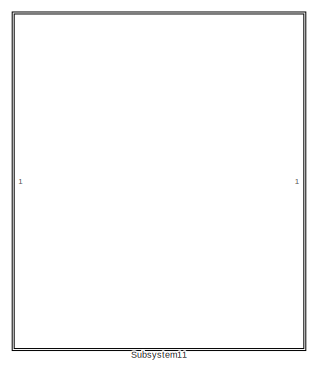
[diagram: root canvas - part 1/15, top center region]
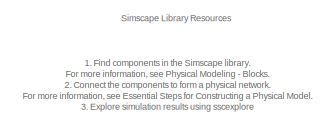
[diagram: root canvas - part 2/15, top center region]
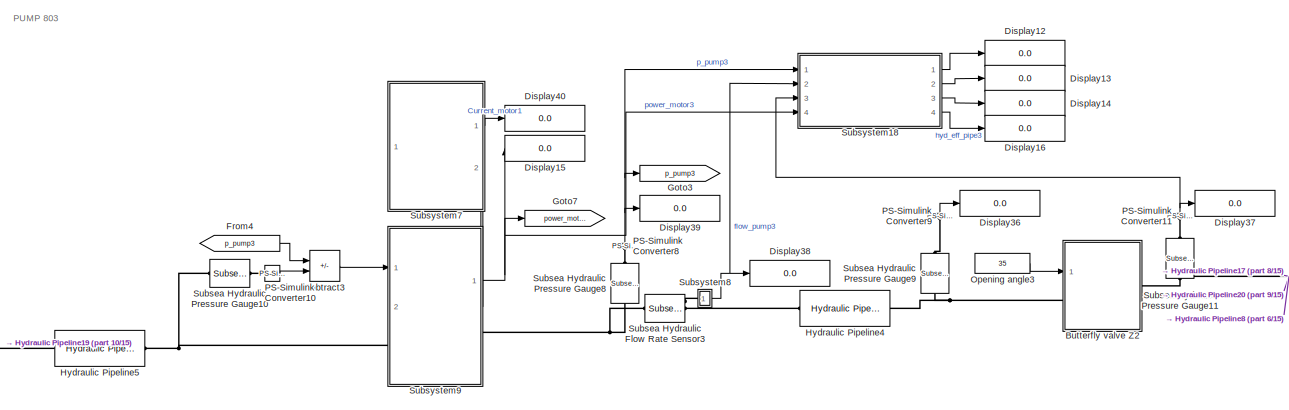
[diagram: root canvas - part 3/15, top right region]
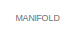
[diagram: root canvas - part 4/15, top right region]
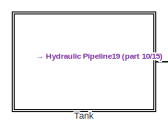
[diagram: root canvas - part 5/15, top center region]
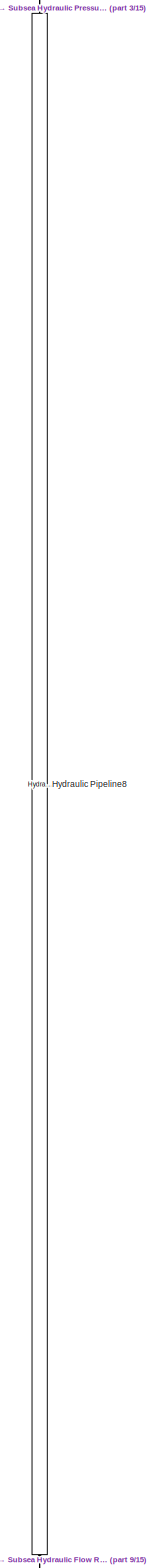
[diagram: root canvas - part 6/15, middle right region]
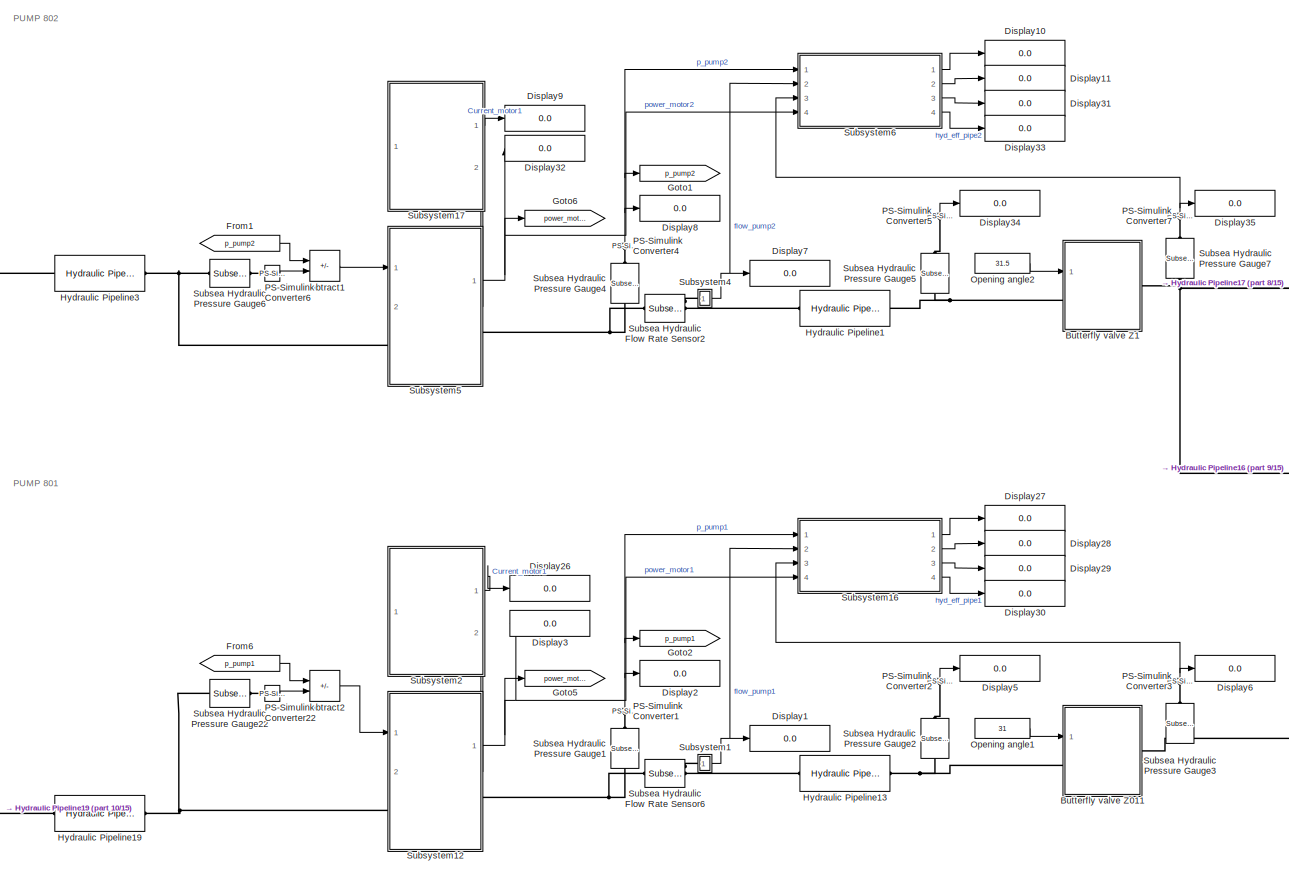
[diagram: root canvas - part 7/15, middle right region]
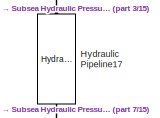
[diagram: root canvas - part 8/15, middle right region]
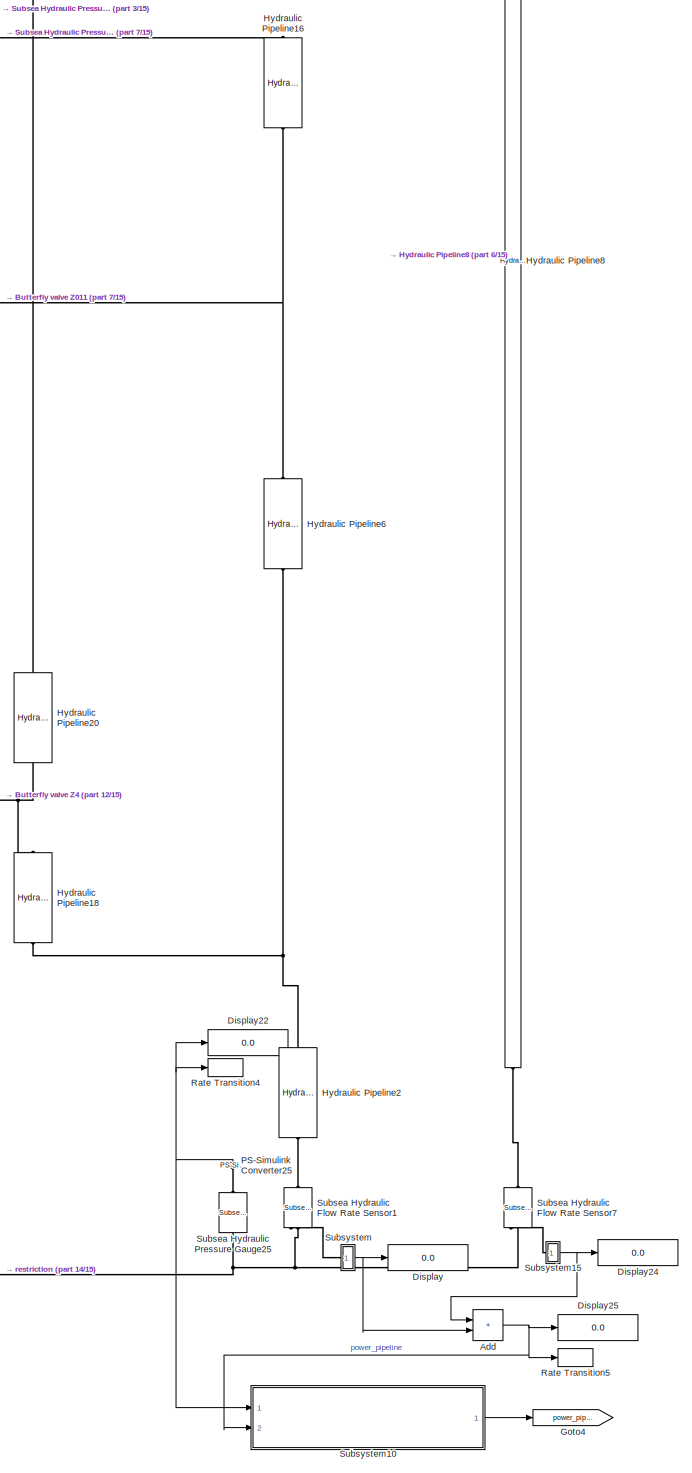
[diagram: root canvas - part 9/15, bottom right region]
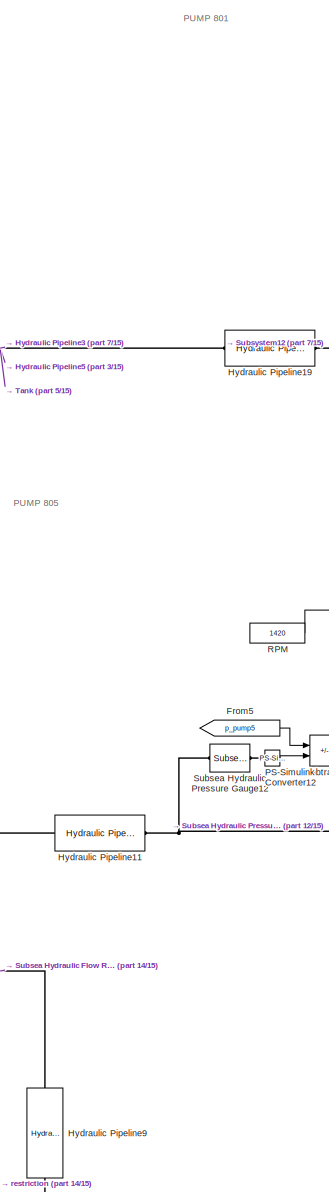
[diagram: root canvas - part 10/15, central region]
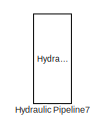
[diagram: root canvas - part 11/15, middle right region]
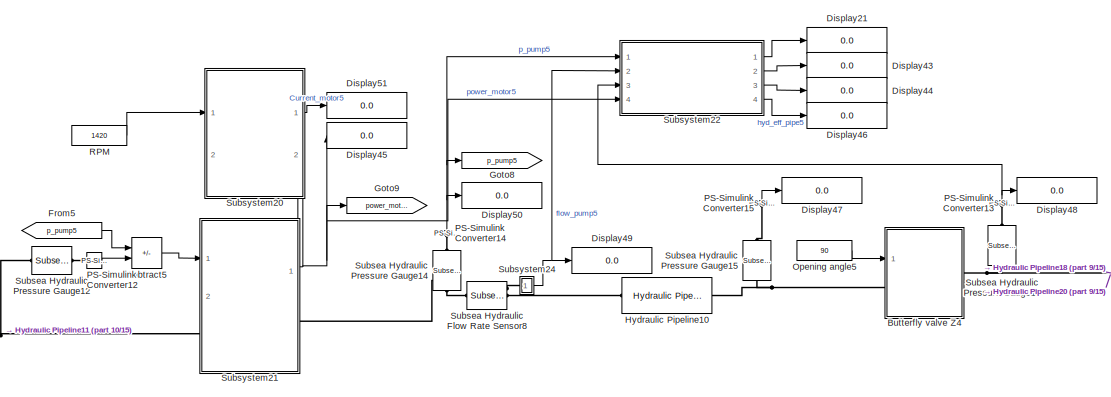
[diagram: root canvas - part 12/15, bottom right region]
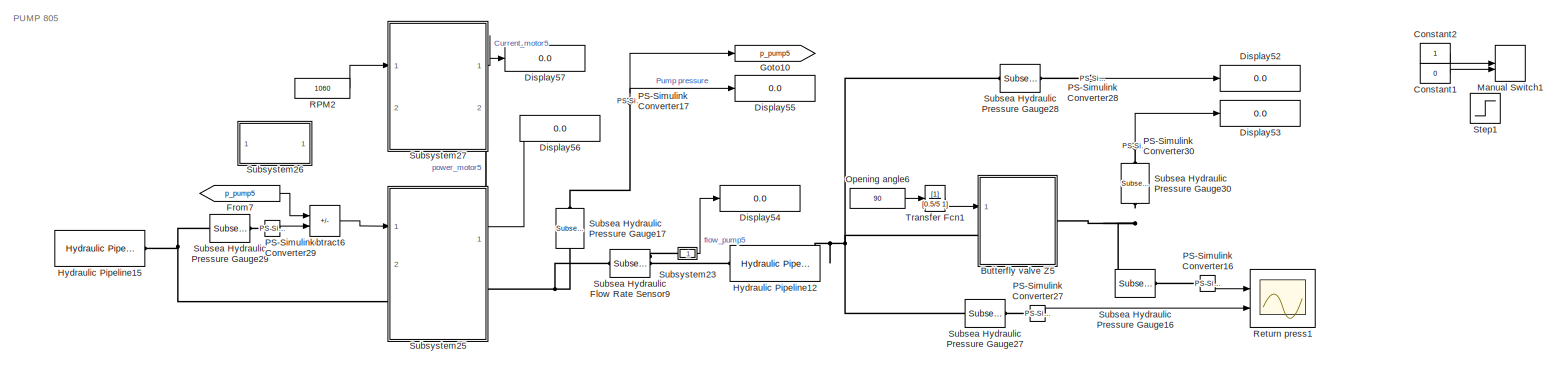
[diagram: root canvas - part 13/15, bottom left region]
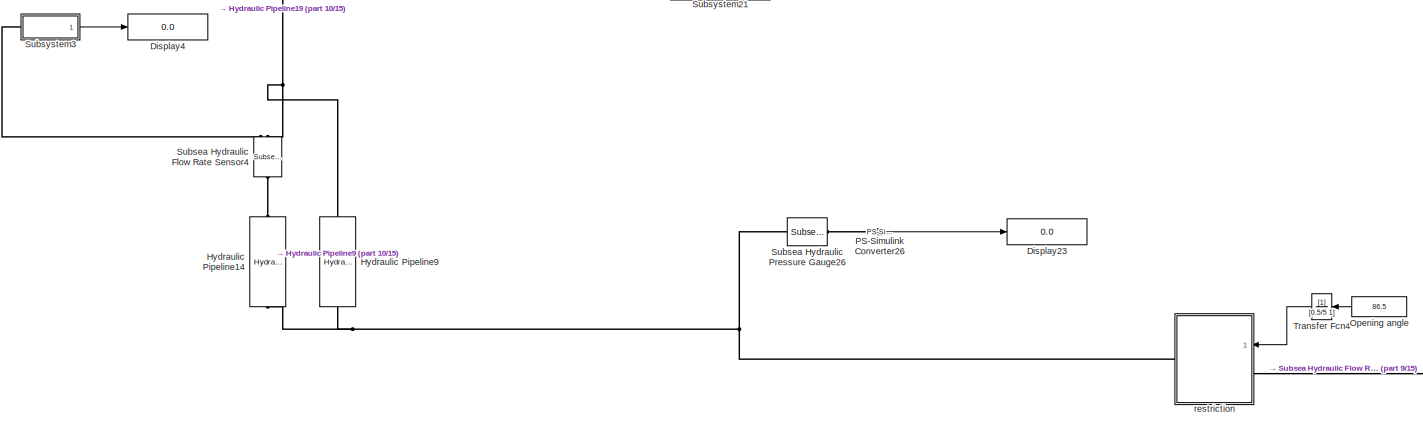
[diagram: root canvas - part 14/15, bottom center region]
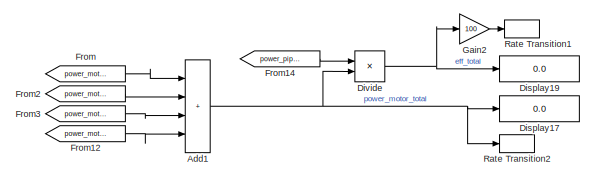
[diagram: root canvas - part 15/15, bottom right region]
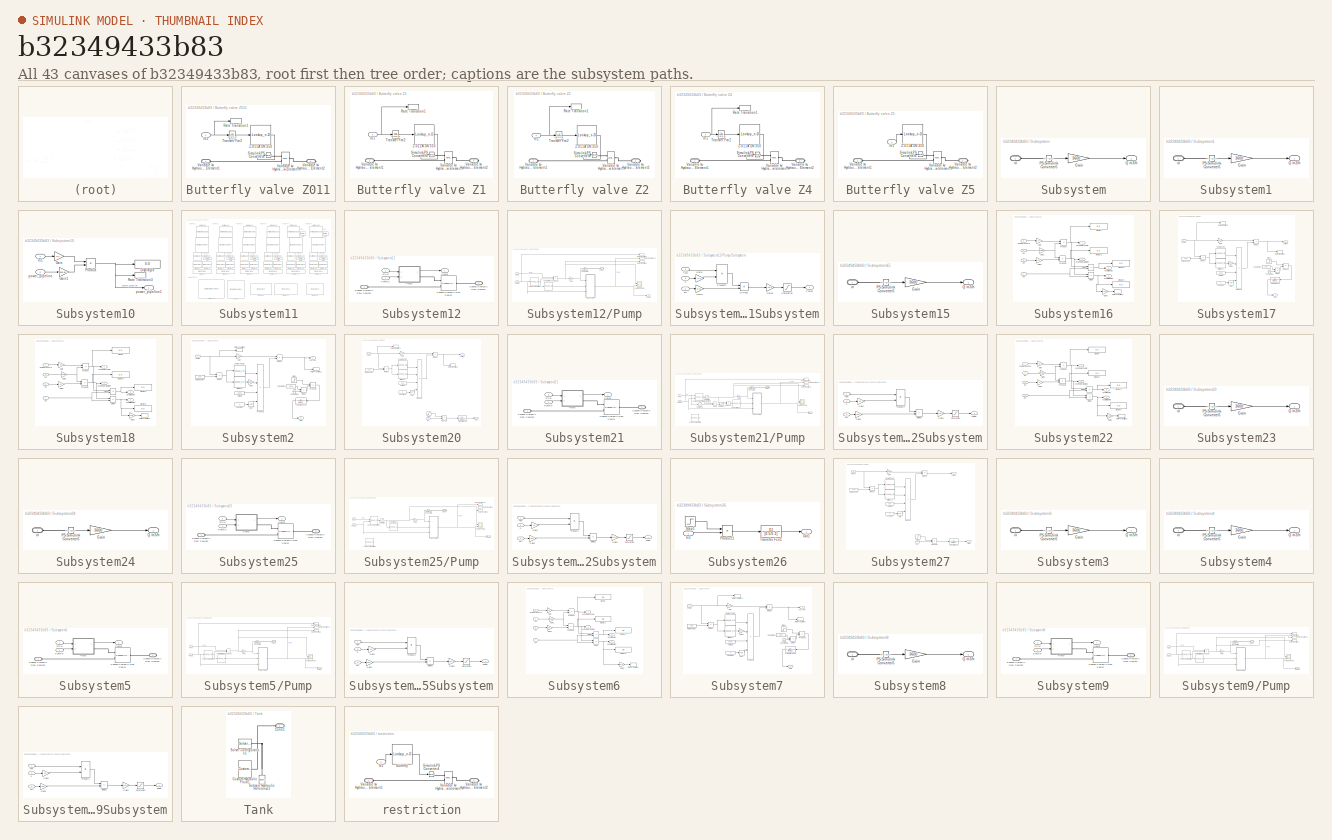
[diagram: thumbnail index - all 43 canvases of the model, root first then tree order]
MODEL slx_b32349433b83
KIND model
CONFIG AbsTol = 1e-4
CONFIG EnableMultiTasking = off
CONFIG FixedStep = auto
CONFIG MaxStep = 0.5
CONFIG MinStep = auto
CONFIG RelTol = 1e-3
CONFIG SampleTimeConstraint = Unconstrained
CONFIG Solver = VariableStepAuto
CONFIG SolverName = VariableStepAuto
CONFIG StartTime = 0.0
CONFIG StopTime = 1000
BLOCK [Sum] Add
  IconShape = rectangular
  Ports = [2, 1]
BLOCK [Sum] Add1
  IconShape = rectangular
  Inputs = ++++
  Ports = [4, 1]
BLOCK [SubSystem] Butterfly valve Z011
  Ports = [1, 0, 0, 0, 0, 1, 1]
  RequestExecContextInheritance = off
BLOCK [Inport] Butterfly valve Z011/In1
BLOCK [RateTransition] Butterfly valve Z011/Rate Transition1
  OutPortSampleTime = 1
BLOCK [Reference] Butterfly valve Z011/Simulink-PS Converter4  REF=nesl_utility/Simulink-PS
Converter
  NameLocation = right
  Ports = [1, 0, 0, 0, 0, 0, 1]
  SourceBlock = nesl_utility/Simulink-PS\nConverter
  SourceProductBaseCode = MT,SS
  SourceType = Simulink-PS\nConverter
BLOCK [TransferFcn] Butterfly valve Z011/Transfer Fcn2
  Denominator = [0.5/5 1]
BLOCK [Reference] Butterfly valve Z011/Variable kv Hydraulic Flow Element  REF=subsea_lib/Valves/Variable kv
Hydraulic Flow
Element
  Ports = [0, 0, 0, 0, 0, 2, 1]
  SourceBlock = subsea_lib/Valves/Variable kv\nHydraulic Flow\nElement
  SourceProductName = Subsea
  SourceType = Variable kv\nHydraulic Flow\nElement
BLOCK [PMIOPort] Butterfly valve Z011/Variable kv Hydraulic Flow Element1
  Side = Left
BLOCK [PMIOPort] Butterfly valve Z011/Variable kv Hydraulic Flow Element2
  Port = 2
  Side = Right
BLOCK [Lookup_n-D] Butterfly valve Z011/Z-011A DN 350
  BreakpointsForDimension1 = [0 20 30 40 50 60 70 80 90]
  BreakpointsForDimension2 = [1:3]
  InternalRulePriority = Speed
  NumberOfTableDimensions = 1
  Ports = [1, 1]
  RndMeth = Simplest
  Table = [0 399 488 1070 2110 3590 5480 7760 10400]
BLOCK [SubSystem] Butterfly valve Z1
  Ports = [1, 0, 0, 0, 0, 1, 1]
  RequestExecContextInheritance = off
BLOCK [Inport] Butterfly valve Z1/In1
BLOCK [RateTransition] Butterfly valve Z1/Rate Transition1
  OutPortSampleTime = 1
BLOCK [Reference] Butterfly valve Z1/Simulink-PS Converter4  REF=nesl_utility/Simulink-PS
Converter
  NameLocation = right
  Ports = [1, 0, 0, 0, 0, 0, 1]
  SourceBlock = nesl_utility/Simulink-PS\nConverter
  SourceProductBaseCode = MT,SS
  SourceType = Simulink-PS\nConverter
BLOCK [TransferFcn] Butterfly valve Z1/Transfer Fcn2
  Denominator = [0.5/5 1]
BLOCK [Reference] Butterfly valve Z1/Variable kv Hydraulic Flow Element  REF=subsea_lib/Valves/Variable kv
Hydraulic Flow
Element
  Ports = [0, 0, 0, 0, 0, 2, 1]
  SourceBlock = subsea_lib/Valves/Variable kv\nHydraulic Flow\nElement
  SourceProductName = Subsea
  SourceType = Variable kv\nHydraulic Flow\nElement
BLOCK [PMIOPort] Butterfly valve Z1/Variable kv Hydraulic Flow Element1
  Side = Left
BLOCK [PMIOPort] Butterfly valve Z1/Variable kv Hydraulic Flow Element2
  Port = 2
  Side = Right
BLOCK [Lookup_n-D] Butterfly valve Z1/Z-011A DN 350
  BreakpointsForDimension1 = [0 20 30 40 50 60 70 80 90]
  BreakpointsForDimension2 = [1:3]
  InternalRulePriority = Speed
  NumberOfTableDimensions = 1
  Ports = [1, 1]
  RndMeth = Simplest
  Table = [0 399 488 1070 2110 3590 5480 7760 10400]
BLOCK [SubSystem] Butterfly valve Z2
  Ports = [1, 0, 0, 0, 0, 1, 1]
  RequestExecContextInheritance = off
BLOCK [Inport] Butterfly valve Z2/In1
BLOCK [RateTransition] Butterfly valve Z2/Rate Transition1
  OutPortSampleTime = 1
BLOCK [Reference] Butterfly valve Z2/Simulink-PS Converter4  REF=nesl_utility/Simulink-PS
Converter
  NameLocation = right
  Ports = [1, 0, 0, 0, 0, 0, 1]
  SourceBlock = nesl_utility/Simulink-PS\nConverter
  SourceProductBaseCode = MT,SS
  SourceType = Simulink-PS\nConverter
BLOCK [TransferFcn] Butterfly valve Z2/Transfer Fcn2
  Denominator = [0.5/5 1]
BLOCK [Reference] Butterfly valve Z2/Variable kv Hydraulic Flow Element  REF=subsea_lib/Valves/Variable kv
Hydraulic Flow
Element
  Ports = [0, 0, 0, 0, 0, 2, 1]
  SourceBlock = subsea_lib/Valves/Variable kv\nHydraulic Flow\nElement
  SourceProductName = Subsea
  SourceType = Variable kv\nHydraulic Flow\nElement
BLOCK [PMIOPort] Butterfly valve Z2/Variable kv Hydraulic Flow Element1
  Side = Left
BLOCK [PMIOPort] Butterfly valve Z2/Variable kv Hydraulic Flow Element2
  Port = 2
  Side = Right
BLOCK [Lookup_n-D] Butterfly valve Z2/Z-011A DN 350
  BreakpointsForDimension1 = [0 20 30 40 50 60 70 80 90]
  BreakpointsForDimension2 = [1:3]
  InternalRulePriority = Speed
  NumberOfTableDimensions = 1
  Ports = [1, 1]
  RndMeth = Simplest
  Table = [0 399 488 1070 2110 3590 5480 7760 10400]
BLOCK [SubSystem] Butterfly valve Z4
  Ports = [1, 0, 0, 0, 0, 1, 1]
  RequestExecContextInheritance = off
BLOCK [Inport] Butterfly valve Z4/In1
BLOCK [RateTransition] Butterfly valve Z4/Rate Transition1
  OutPortSampleTime = 1
BLOCK [Reference] Butterfly valve Z4/Simulink-PS Converter4  REF=nesl_utility/Simulink-PS
Converter
  NameLocation = right
  Ports = [1, 0, 0, 0, 0, 0, 1]
  SourceBlock = nesl_utility/Simulink-PS\nConverter
  SourceProductBaseCode = MT,SS
  SourceType = Simulink-PS\nConverter
BLOCK [TransferFcn] Butterfly valve Z4/Transfer Fcn2
  Denominator = [0.5/5 1]
BLOCK [Reference] Butterfly valve Z4/Variable kv Hydraulic Flow Element  REF=subsea_lib/Valves/Variable kv
Hydraulic Flow
Element
  Ports = [0, 0, 0, 0, 0, 2, 1]
  SourceBlock = subsea_lib/Valves/Variable kv\nHydraulic Flow\nElement
  SourceProductName = Subsea
  SourceType = Variable kv\nHydraulic Flow\nElement
BLOCK [PMIOPort] Butterfly valve Z4/Variable kv Hydraulic Flow Element1
  Side = Left
BLOCK [PMIOPort] Butterfly valve Z4/Variable kv Hydraulic Flow Element2
  Port = 2
  Side = Right
BLOCK [Lookup_n-D] Butterfly valve Z4/Z-011A DN 350
  BreakpointsForDimension1 = [0 20 30 40 50 60 70 80 90]
  BreakpointsForDimension2 = [1:3]
  InternalRulePriority = Speed
  NumberOfTableDimensions = 1
  Ports = [1, 1]
  RndMeth = Simplest
  Table = [0 399 488 1070 2110 3590 5480 7760 10400]
BLOCK [SubSystem] Butterfly valve Z5
  Commented = on
  Ports = [1, 0, 0, 0, 0, 1, 1]
  RequestExecContextInheritance = off
BLOCK [Inport] Butterfly valve Z5/In1
BLOCK [Reference] Butterfly valve Z5/Simulink-PS Converter4  REF=nesl_utility/Simulink-PS
Converter
  NameLocation = right
  Ports = [1, 0, 0, 0, 0, 0, 1]
  SourceBlock = nesl_utility/Simulink-PS\nConverter
  SourceProductBaseCode = MT,SS
  SourceType = Simulink-PS\nConverter
BLOCK [Reference] Butterfly valve Z5/Variable kv Hydraulic Flow Element  REF=subsea_lib/Valves/Variable kv
Hydraulic Flow
Element
  Ports = [0, 0, 0, 0, 0, 2, 1]
  SourceBlock = subsea_lib/Valves/Variable kv\nHydraulic Flow\nElement
  SourceProductName = Subsea
  SourceType = Variable kv\nHydraulic Flow\nElement
BLOCK [PMIOPort] Butterfly valve Z5/Variable kv Hydraulic Flow Element1
  Side = Left
BLOCK [PMIOPort] Butterfly valve Z5/Variable kv Hydraulic Flow Element2
  Port = 2
  Side = Right
BLOCK [Lookup_n-D] Butterfly valve Z5/Z-011A DN 350
  BreakpointsForDimension1 = [0 20 30 40 50 60 70 80 90]
  BreakpointsForDimension2 = [1:3]
  InternalRulePriority = Speed
  NumberOfTableDimensions = 1
  Ports = [1, 1]
  RndMeth = Simplest
  Table = [0 399 488 1070 2110 3590 5480 7760 10400]
BLOCK [Constant] Constant1
  Commented = on
  Value = 0
BLOCK [Constant] Constant2
  Commented = on
BLOCK [Display] Display
  Decimation = 2
  Ports = [1]
BLOCK [Display] Display1
  Decimation = 2
  Ports = [1]
BLOCK [Display] Display10
  Decimation = 2
  Ports = [1]
BLOCK [Display] Display11
  Decimation = 2
  Ports = [1]
BLOCK [Display] Display12
  Decimation = 2
  Ports = [1]
BLOCK [Display] Display13
  Decimation = 2
  Ports = [1]
BLOCK [Display] Display14
  Decimation = 2
  Ports = [1]
BLOCK [Display] Display15
  Decimation = 2
  Ports = [1]
BLOCK [Display] Display16
  Decimation = 2
  Ports = [1]
BLOCK [Display] Display17
  Decimation = 2
  Ports = [1]
BLOCK [Display] Display19
  Decimation = 2
  Ports = [1]
BLOCK [Display] Display2
  Decimation = 2
  Ports = [1]
BLOCK [Display] Display21
  Decimation = 2
  Ports = [1]
BLOCK [Display] Display22
  Decimation = 2
  Ports = [1]
BLOCK [Display] Display23
  Decimation = 2
  Ports = [1]
BLOCK [Display] Display24
  Decimation = 2
  Ports = [1]
BLOCK [Display] Display25
  Decimation = 2
  Ports = [1]
BLOCK [Display] Display26
  Decimation = 2
  Ports = [1]
BLOCK [Display] Display27
  Decimation = 2
  Ports = [1]
BLOCK [Display] Display28
  Decimation = 2
  Ports = [1]
BLOCK [Display] Display29
  Decimation = 2
  Ports = [1]
BLOCK [Display] Display3
  Decimation = 2
  Ports = [1]
BLOCK [Display] Display30
  Decimation = 2
  Ports = [1]
BLOCK [Display] Display31
  Decimation = 2
  Ports = [1]
BLOCK [Display] Display32
  Decimation = 2
  Ports = [1]
BLOCK [Display] Display33
  Decimation = 2
  Ports = [1]
BLOCK [Display] Display34
  Decimation = 2
  Ports = [1]
BLOCK [Display] Display35
  Decimation = 2
  Ports = [1]
BLOCK [Display] Display36
  Decimation = 2
  Ports = [1]
BLOCK [Display] Display37
  Decimation = 2
  Ports = [1]
BLOCK [Display] Display38
  Decimation = 2
  Ports = [1]
BLOCK [Display] Display39
  Decimation = 2
  Ports = [1]
BLOCK [Display] Display4
  Decimation = 2
  Ports = [1]
BLOCK [Display] Display40
  Decimation = 2
  Ports = [1]
BLOCK [Display] Display43
  Decimation = 2
  Ports = [1]
BLOCK [Display] Display44
  Decimation = 2
  Ports = [1]
BLOCK [Display] Display45
  Decimation = 2
  Ports = [1]
BLOCK [Display] Display46
  Decimation = 2
  Ports = [1]
BLOCK [Display] Display47
  Decimation = 2
  Ports = [1]
BLOCK [Display] Display48
  Decimation = 2
  Ports = [1]
BLOCK [Display] Display49
  Decimation = 2
  Ports = [1]
BLOCK [Display] Display5
  Decimation = 2
  Ports = [1]
BLOCK [Display] Display50
  Decimation = 2
  Ports = [1]
BLOCK [Display] Display51
  Decimation = 2
  Ports = [1]
BLOCK [Display] Display52
  Commented = on
  Decimation = 2
  Ports = [1]
BLOCK [Display] Display53
  Commented = on
  Decimation = 2
  Ports = [1]
BLOCK [Display] Display54
  Commented = on
  Decimation = 2
  Ports = [1]
BLOCK [Display] Display55
  Commented = on
  Decimation = 2
  Ports = [1]
BLOCK [Display] Display56
  Commented = on
  Decimation = 2
  Ports = [1]
BLOCK [Display] Display57
  Commented = on
  Decimation = 2
  Ports = [1]
BLOCK [Display] Display6
  Decimation = 2
  Ports = [1]
BLOCK [Display] Display7
  Decimation = 2
  Ports = [1]
BLOCK [Display] Display8
  Decimation = 2
  Ports = [1]
BLOCK [Display] Display9
  Decimation = 2
  Ports = [1]
BLOCK [Product] Divide
  Inputs = */
  Ports = [2, 1]
BLOCK [From] From
  GotoTag = power_motor1
BLOCK [From] From1
  GotoTag = p_pump2
BLOCK [From] From12
  GotoTag = power_motor5
BLOCK [From] From14
  GotoTag = power_pipeline
BLOCK [From] From2
  GotoTag = power_motor2
BLOCK [From] From3
  GotoTag = power_motor3
BLOCK [From] From4
  GotoTag = p_pump3
BLOCK [From] From5
  GotoTag = p_pump5
BLOCK [From] From6
  GotoTag = p_pump1
BLOCK [From] From7
  Commented = on
  GotoTag = p_pump5
BLOCK [Gain] Gain2
  Gain = 100
BLOCK [Goto] Goto1
  GotoTag = p_pump2
BLOCK [Goto] Goto10
  Commented = on
  GotoTag = p_pump5
BLOCK [Goto] Goto2
  GotoTag = p_pump1
BLOCK [Goto] Goto3
  GotoTag = p_pump3
BLOCK [Goto] Goto4
  GotoTag = power_pipeline
BLOCK [Goto] Goto5
  GotoTag = power_motor1
BLOCK [Goto] Goto6
  GotoTag = power_motor2
BLOCK [Goto] Goto7
  GotoTag = power_motor3
BLOCK [Goto] Goto8
  GotoTag = p_pump5
BLOCK [Goto] Goto9
  GotoTag = power_motor5
BLOCK [Reference] Hydraulic Pipeline1  REF=subsea_lib/Lines/Hydraulic Pipeline
  Ports = [0, 0, 0, 0, 0, 1, 1]
  SourceBlock = subsea_lib/Lines/Hydraulic Pipeline
  SourceProductName = Subsea
  SourceType = Hydraulic Pipeline
BLOCK [Reference] Hydraulic Pipeline10  REF=subsea_lib/Lines/Hydraulic Pipeline
  Ports = [0, 0, 0, 0, 0, 1, 1]
  SourceBlock = subsea_lib/Lines/Hydraulic Pipeline
  SourceProductName = Subsea
  SourceType = Hydraulic Pipeline
BLOCK [Reference] Hydraulic Pipeline11  REF=subsea_lib/Lines/Hydraulic Pipeline
  Ports = [0, 0, 0, 0, 0, 1, 1]
  SourceBlock = subsea_lib/Lines/Hydraulic Pipeline
  SourceProductName = Subsea
  SourceType = Hydraulic Pipeline
BLOCK [Reference] Hydraulic Pipeline12  REF=subsea_lib/Lines/Hydraulic Pipeline
  Commented = on
  Ports = [0, 0, 0, 0, 0, 1, 1]
  SourceBlock = subsea_lib/Lines/Hydraulic Pipeline
  SourceProductName = Subsea
  SourceType = Hydraulic Pipeline
BLOCK [Reference] Hydraulic Pipeline13  REF=subsea_lib/Lines/Hydraulic Pipeline
  Ports = [0, 0, 0, 0, 0, 1, 1]
  SourceBlock = subsea_lib/Lines/Hydraulic Pipeline
  SourceProductName = Subsea
  SourceType = Hydraulic Pipeline
BLOCK [Reference] Hydraulic Pipeline14  REF=subsea_lib/Lines/Hydraulic Pipeline
  NameLocation = left
  Ports = [0, 0, 0, 0, 0, 1, 1]
  SourceBlock = subsea_lib/Lines/Hydraulic Pipeline
  SourceProductName = Subsea
  SourceType = Hydraulic Pipeline
BLOCK [Reference] Hydraulic Pipeline15  REF=subsea_lib/Lines/Hydraulic Pipeline
  Commented = on
  Ports = [0, 0, 0, 0, 0, 1, 1]
  SourceBlock = subsea_lib/Lines/Hydraulic Pipeline
  SourceProductName = Subsea
  SourceType = Hydraulic Pipeline
BLOCK [Reference] Hydraulic Pipeline16  REF=subsea_lib/Lines/Hydraulic Pipeline
  NameLocation = left
  Ports = [0, 0, 0, 0, 0, 1, 1]
  SourceBlock = subsea_lib/Lines/Hydraulic Pipeline
  SourceProductName = Subsea
  SourceType = Hydraulic Pipeline
BLOCK [Reference] Hydraulic Pipeline17  REF=subsea_lib/Lines/Hydraulic Pipeline
  NameLocation = left
  Ports = [0, 0, 0, 0, 0, 1, 1]
  SourceBlock = subsea_lib/Lines/Hydraulic Pipeline
  SourceProductName = Subsea
  SourceType = Hydraulic Pipeline
BLOCK [Reference] Hydraulic Pipeline18  REF=subsea_lib/Lines/Hydraulic Pipeline
  NameLocation = left
  Ports = [0, 0, 0, 0, 0, 1, 1]
  SourceBlock = subsea_lib/Lines/Hydraulic Pipeline
  SourceProductName = Subsea
  SourceType = Hydraulic Pipeline
BLOCK [Reference] Hydraulic Pipeline19  REF=subsea_lib/Lines/Hydraulic Pipeline
  Ports = [0, 0, 0, 0, 0, 1, 1]
  SourceBlock = subsea_lib/Lines/Hydraulic Pipeline
  SourceProductName = Subsea
  SourceType = Hydraulic Pipeline
BLOCK [Reference] Hydraulic Pipeline2  REF=subsea_lib/Lines/Hydraulic Pipeline
  NameLocation = left
  Ports = [0, 0, 0, 0, 0, 1, 1]
  SourceBlock = subsea_lib/Lines/Hydraulic Pipeline
  SourceProductName = Subsea
  SourceType = Hydraulic Pipeline
BLOCK [Reference] Hydraulic Pipeline20  REF=subsea_lib/Lines/Hydraulic Pipeline
  NameLocation = right
  Ports = [0, 0, 0, 0, 0, 1, 1]
  SourceBlock = subsea_lib/Lines/Hydraulic Pipeline
  SourceProductName = Subsea
  SourceType = Hydraulic Pipeline
BLOCK [Reference] Hydraulic Pipeline3  REF=subsea_lib/Lines/Hydraulic Pipeline
  Ports = [0, 0, 0, 0, 0, 1, 1]
  SourceBlock = subsea_lib/Lines/Hydraulic Pipeline
  SourceProductName = Subsea
  SourceType = Hydraulic Pipeline
BLOCK [Reference] Hydraulic Pipeline4  REF=subsea_lib/Lines/Hydraulic Pipeline
  Ports = [0, 0, 0, 0, 0, 1, 1]
  SourceBlock = subsea_lib/Lines/Hydraulic Pipeline
  SourceProductName = Subsea
  SourceType = Hydraulic Pipeline
BLOCK [Reference] Hydraulic Pipeline5  REF=subsea_lib/Lines/Hydraulic Pipeline
  Ports = [0, 0, 0, 0, 0, 1, 1]
  SourceBlock = subsea_lib/Lines/Hydraulic Pipeline
  SourceProductName = Subsea
  SourceType = Hydraulic Pipeline
BLOCK [Reference] Hydraulic Pipeline6  REF=subsea_lib/Lines/Hydraulic Pipeline
  NameLocation = left
  Ports = [0, 0, 0, 0, 0, 1, 1]
  SourceBlock = subsea_lib/Lines/Hydraulic Pipeline
  SourceProductName = Subsea
  SourceType = Hydraulic Pipeline
BLOCK [Reference] Hydraulic Pipeline7  REF=subsea_lib/Lines/Hydraulic Pipeline
  NameLocation = left
  Ports = [0, 0, 0, 0, 0, 1, 1]
  SourceBlock = subsea_lib/Lines/Hydraulic Pipeline
  SourceProductName = Subsea
  SourceType = Hydraulic Pipeline
BLOCK [Reference] Hydraulic Pipeline8  REF=subsea_lib/Lines/Hydraulic Pipeline
  NameLocation = left
  Ports = [0, 0, 0, 0, 0, 1, 1]
  SourceBlock = subsea_lib/Lines/Hydraulic Pipeline
  SourceProductName = Subsea
  SourceType = Hydraulic Pipeline
BLOCK [Reference] Hydraulic Pipeline9  REF=subsea_lib/Lines/Hydraulic Pipeline
  NameLocation = left
  Ports = [0, 0, 0, 0, 0, 1, 1]
  SourceBlock = subsea_lib/Lines/Hydraulic Pipeline
  SourceProductName = Subsea
  SourceType = Hydraulic Pipeline
BLOCK [ManualSwitch] Manual Switch1
  Commented = on
  CurrentSetting = 0
BLOCK [Constant] Opening angle
  Value = 86.5
BLOCK [Constant] Opening angle1
  Value = 31
BLOCK [Constant] Opening angle2
  Value = 31.5
BLOCK [Constant] Opening angle3
  Value = 35
BLOCK [Constant] Opening angle5
  Value = 90
BLOCK [Constant] Opening angle6
  Commented = on
  Value = 90
BLOCK [Reference] PS-Simulink Converter1  REF=nesl_utility/PS-Simulink
Converter
  NameLocation = right
  Ports = [0, 1, 0, 0, 0, 1]
  SourceBlock = nesl_utility/PS-Simulink\nConverter
  SourceProductBaseCode = MT,SS
  SourceType = PS-Simulink\nConverter
BLOCK [Reference] PS-Simulink Converter10  REF=nesl_utility/PS-Simulink
Converter
  Ports = [0, 1, 0, 0, 0, 1]
  SourceBlock = nesl_utility/PS-Simulink\nConverter
  SourceProductBaseCode = MT,SS
  SourceType = PS-Simulink\nConverter
BLOCK [Reference] PS-Simulink Converter11  REF=nesl_utility/PS-Simulink
Converter
  NameLocation = right
  Ports = [0, 1, 0, 0, 0, 1]
  SourceBlock = nesl_utility/PS-Simulink\nConverter
  SourceProductBaseCode = MT,SS
  SourceType = PS-Simulink\nConverter
BLOCK [Reference] PS-Simulink Converter12  REF=nesl_utility/PS-Simulink
Converter
  Ports = [0, 1, 0, 0, 0, 1]
  SourceBlock = nesl_utility/PS-Simulink\nConverter
  SourceProductBaseCode = MT,SS
  SourceType = PS-Simulink\nConverter
BLOCK [Reference] PS-Simulink Converter13  REF=nesl_utility/PS-Simulink
Converter
  NameLocation = right
  Ports = [0, 1, 0, 0, 0, 1]
  SourceBlock = nesl_utility/PS-Simulink\nConverter
  SourceProductBaseCode = MT,SS
  SourceType = PS-Simulink\nConverter
BLOCK [Reference] PS-Simulink Converter14  REF=nesl_utility/PS-Simulink
Converter
  NameLocation = right
  Ports = [0, 1, 0, 0, 0, 1]
  SourceBlock = nesl_utility/PS-Simulink\nConverter
  SourceProductBaseCode = MT,SS
  SourceType = PS-Simulink\nConverter
BLOCK [Reference] PS-Simulink Converter15  REF=nesl_utility/PS-Simulink
Converter
  NameLocation = right
  Ports = [0, 1, 0, 0, 0, 1]
  SourceBlock = nesl_utility/PS-Simulink\nConverter
  SourceProductBaseCode = MT,SS
  SourceType = PS-Simulink\nConverter
BLOCK [Reference] PS-Simulink Converter16  REF=nesl_utility/PS-Simulink
Converter
  Commented = on
  Ports = [0, 1, 0, 0, 0, 1]
  SourceBlock = nesl_utility/PS-Simulink\nConverter
  SourceProductBaseCode = MT,SS
  SourceType = PS-Simulink\nConverter
BLOCK [Reference] PS-Simulink Converter17  REF=nesl_utility/PS-Simulink
Converter
  Commented = on
  NameLocation = right
  Ports = [0, 1, 0, 0, 0, 1]
  SourceBlock = nesl_utility/PS-Simulink\nConverter
  SourceProductBaseCode = MT,SS
  SourceType = PS-Simulink\nConverter
BLOCK [Reference] PS-Simulink Converter2  REF=nesl_utility/PS-Simulink
Converter
  NameLocation = right
  Ports = [0, 1, 0, 0, 0, 1]
  SourceBlock = nesl_utility/PS-Simulink\nConverter
  SourceProductBaseCode = MT,SS
  SourceType = PS-Simulink\nConverter
BLOCK [Reference] PS-Simulink Converter22  REF=nesl_utility/PS-Simulink
Converter
  Ports = [0, 1, 0, 0, 0, 1]
  SourceBlock = nesl_utility/PS-Simulink\nConverter
  SourceProductBaseCode = MT,SS
  SourceType = PS-Simulink\nConverter
BLOCK [Reference] PS-Simulink Converter25  REF=nesl_utility/PS-Simulink
Converter
  NameLocation = right
  Ports = [0, 1, 0, 0, 0, 1]
  SourceBlock = nesl_utility/PS-Simulink\nConverter
  SourceProductBaseCode = MT,SS
  SourceType = PS-Simulink\nConverter
BLOCK [Reference] PS-Simulink Converter26  REF=nesl_utility/PS-Simulink
Converter
  Ports = [0, 1, 0, 0, 0, 1]
  SourceBlock = nesl_utility/PS-Simulink\nConverter
  SourceProductBaseCode = MT,SS
  SourceType = PS-Simulink\nConverter
BLOCK [Reference] PS-Simulink Converter27  REF=nesl_utility/PS-Simulink
Converter
  Commented = on
  Ports = [0, 1, 0, 0, 0, 1]
  SourceBlock = nesl_utility/PS-Simulink\nConverter
  SourceProductBaseCode = MT,SS
  SourceType = PS-Simulink\nConverter
BLOCK [Reference] PS-Simulink Converter28  REF=nesl_utility/PS-Simulink
Converter
  Commented = on
  Ports = [0, 1, 0, 0, 0, 1]
  SourceBlock = nesl_utility/PS-Simulink\nConverter
  SourceProductBaseCode = MT,SS
  SourceType = PS-Simulink\nConverter
BLOCK [Reference] PS-Simulink Converter29  REF=nesl_utility/PS-Simulink
Converter
  Commented = on
  Ports = [0, 1, 0, 0, 0, 1]
  SourceBlock = nesl_utility/PS-Simulink\nConverter
  SourceProductBaseCode = MT,SS
  SourceType = PS-Simulink\nConverter
BLOCK [Reference] PS-Simulink Converter3  REF=nesl_utility/PS-Simulink
Converter
  NameLocation = right
  Ports = [0, 1, 0, 0, 0, 1]
  SourceBlock = nesl_utility/PS-Simulink\nConverter
  SourceProductBaseCode = MT,SS
  SourceType = PS-Simulink\nConverter
BLOCK [Reference] PS-Simulink Converter30  REF=nesl_utility/PS-Simulink
Converter
  Commented = on
  NameLocation = right
  Ports = [0, 1, 0, 0, 0, 1]
  SourceBlock = nesl_utility/PS-Simulink\nConverter
  SourceProductBaseCode = MT,SS
  SourceType = PS-Simulink\nConverter
BLOCK [Reference] PS-Simulink Converter4  REF=nesl_utility/PS-Simulink
Converter
  NameLocation = right
  Ports = [0, 1, 0, 0, 0, 1]
  SourceBlock = nesl_utility/PS-Simulink\nConverter
  SourceProductBaseCode = MT,SS
  SourceType = PS-Simulink\nConverter
BLOCK [Reference] PS-Simulink Converter5  REF=nesl_utility/PS-Simulink
Converter
  NameLocation = right
  Ports = [0, 1, 0, 0, 0, 1]
  SourceBlock = nesl_utility/PS-Simulink\nConverter
  SourceProductBaseCode = MT,SS
  SourceType = PS-Simulink\nConverter
BLOCK [Reference] PS-Simulink Converter6  REF=nesl_utility/PS-Simulink
Converter
  Ports = [0, 1, 0, 0, 0, 1]
  SourceBlock = nesl_utility/PS-Simulink\nConverter
  SourceProductBaseCode = MT,SS
  SourceType = PS-Simulink\nConverter
BLOCK [Reference] PS-Simulink Converter7  REF=nesl_utility/PS-Simulink
Converter
  NameLocation = right
  Ports = [0, 1, 0, 0, 0, 1]
  SourceBlock = nesl_utility/PS-Simulink\nConverter
  SourceProductBaseCode = MT,SS
  SourceType = PS-Simulink\nConverter
BLOCK [Reference] PS-Simulink Converter8  REF=nesl_utility/PS-Simulink
Converter
  NameLocation = right
  Ports = [0, 1, 0, 0, 0, 1]
  SourceBlock = nesl_utility/PS-Simulink\nConverter
  SourceProductBaseCode = MT,SS
  SourceType = PS-Simulink\nConverter
BLOCK [Reference] PS-Simulink Converter9  REF=nesl_utility/PS-Simulink
Converter
  NameLocation = right
  Ports = [0, 1, 0, 0, 0, 1]
  SourceBlock = nesl_utility/PS-Simulink\nConverter
  SourceProductBaseCode = MT,SS
  SourceType = PS-Simulink\nConverter
BLOCK [Constant] RPM
  Value = 1420
BLOCK [Constant] RPM2
  Commented = on
  Value = 1060
BLOCK [RateTransition] Rate Transition1
  OutPortSampleTime = 1
BLOCK [RateTransition] Rate Transition2
  OutPortSampleTime = 1
BLOCK [RateTransition] Rate Transition4
  OutPortSampleTime = 1
BLOCK [RateTransition] Rate Transition5
  OutPortSampleTime = 1
BLOCK [Scope] Return press1
  Commented = on
  Floating = off
  NumInputPorts = 2
  Ports = [2]
  ScopeSpecificationString = Simulink.scopes.TimeScopeBlockCfg('CurrentConfiguration', extmgr.ConfigurationSet(extmgr.Configuration('Core','General UI',true),extmgr.Configuration('Core','Source UI',true),extmgr.Configuration('Sources','WiredSimulink',true,'DataLoggingVariableName','ScopeData1'),extmgr.Configuration('Visuals','Time Domain',true,'TimeAxisLabels','All','SerializedDisplays',{struct('MinYLimReal','5.05885','MaxYLi...<+2373ch>
BLOCK [Step] Step1
  Commented = on
  SampleTime = 0
  Time = 75
BLOCK [Reference] Subsea Hydraulic Flow Rate Sensor1  REF=subsea_lib/Sensors/Subsea Hydraulic
Flow Rate Sensor
  NameLocation = left
  Ports = [0, 0, 0, 0, 0, 1, 3]
  SourceBlock = subsea_lib/Sensors/Subsea Hydraulic\nFlow Rate Sensor
  SourceProductName = Subsea
  SourceType = Subsea Hydraulic\nFlow Rate Sensor
BLOCK [Reference] Subsea Hydraulic Flow Rate Sensor2  REF=subsea_lib/Sensors/Subsea Hydraulic
Flow Rate Sensor
  Ports = [0, 0, 0, 0, 0, 1, 3]
  SourceBlock = subsea_lib/Sensors/Subsea Hydraulic\nFlow Rate Sensor
  SourceProductName = Subsea
  SourceType = Subsea Hydraulic\nFlow Rate Sensor
BLOCK [Reference] Subsea Hydraulic Flow Rate Sensor3  REF=subsea_lib/Sensors/Subsea Hydraulic
Flow Rate Sensor
  Ports = [0, 0, 0, 0, 0, 1, 3]
  SourceBlock = subsea_lib/Sensors/Subsea Hydraulic\nFlow Rate Sensor
  SourceProductName = Subsea
  SourceType = Subsea Hydraulic\nFlow Rate Sensor
BLOCK [Reference] Subsea Hydraulic Flow Rate Sensor4  REF=subsea_lib/Sensors/Subsea Hydraulic
Flow Rate Sensor
  NameLocation = right
  Ports = [0, 0, 0, 0, 0, 1, 3]
  SourceBlock = subsea_lib/Sensors/Subsea Hydraulic\nFlow Rate Sensor
  SourceProductName = Subsea
  SourceType = Subsea Hydraulic\nFlow Rate Sensor
BLOCK [Reference] Subsea Hydraulic Flow Rate Sensor6  REF=subsea_lib/Sensors/Subsea Hydraulic
Flow Rate Sensor
  Ports = [0, 0, 0, 0, 0, 1, 3]
  SourceBlock = subsea_lib/Sensors/Subsea Hydraulic\nFlow Rate Sensor
  SourceProductName = Subsea
  SourceType = Subsea Hydraulic\nFlow Rate Sensor
BLOCK [Reference] Subsea Hydraulic Flow Rate Sensor7  REF=subsea_lib/Sensors/Subsea Hydraulic
Flow Rate Sensor
  NameLocation = left
  Ports = [0, 0, 0, 0, 0, 1, 3]
  SourceBlock = subsea_lib/Sensors/Subsea Hydraulic\nFlow Rate Sensor
  SourceProductName = Subsea
  SourceType = Subsea Hydraulic\nFlow Rate Sensor
BLOCK [Reference] Subsea Hydraulic Flow Rate Sensor8  REF=subsea_lib/Sensors/Subsea Hydraulic
Flow Rate Sensor
  Ports = [0, 0, 0, 0, 0, 1, 3]
  SourceBlock = subsea_lib/Sensors/Subsea Hydraulic\nFlow Rate Sensor
  SourceProductName = Subsea
  SourceType = Subsea Hydraulic\nFlow Rate Sensor
BLOCK [Reference] Subsea Hydraulic Flow Rate Sensor9  REF=subsea_lib/Sensors/Subsea Hydraulic
Flow Rate Sensor
  Commented = on
  Ports = [0, 0, 0, 0, 0, 1, 3]
  SourceBlock = subsea_lib/Sensors/Subsea Hydraulic\nFlow Rate Sensor
  SourceProductName = Subsea
  SourceType = Subsea Hydraulic\nFlow Rate Sensor
BLOCK [Reference] Subsea Hydraulic Pressure Gauge1  REF=subsea_lib/Sensors/Subsea Hydraulic
Pressure Gauge
  NameLocation = left
  Ports = [0, 0, 0, 0, 0, 1, 1]
  SourceBlock = subsea_lib/Sensors/Subsea Hydraulic\nPressure Gauge
  SourceProductName = Subsea
  SourceType = Subsea Hydraulic\nPressure Gauge
BLOCK [Reference] Subsea Hydraulic Pressure Gauge10  REF=subsea_lib/Sensors/Subsea Hydraulic
Pressure Gauge
  NameLocation = top
  Ports = [0, 0, 0, 0, 0, 1, 1]
  SourceBlock = subsea_lib/Sensors/Subsea Hydraulic\nPressure Gauge
  SourceProductName = Subsea
  SourceType = Subsea Hydraulic\nPressure Gauge
BLOCK [Reference] Subsea Hydraulic Pressure Gauge11  REF=subsea_lib/Sensors/Subsea Hydraulic
Pressure Gauge
  NameLocation = left
  Ports = [0, 0, 0, 0, 0, 1, 1]
  SourceBlock = subsea_lib/Sensors/Subsea Hydraulic\nPressure Gauge
  SourceProductName = Subsea
  SourceType = Subsea Hydraulic\nPressure Gauge
BLOCK [Reference] Subsea Hydraulic Pressure Gauge12  REF=subsea_lib/Sensors/Subsea Hydraulic
Pressure Gauge
  NameLocation = top
  Ports = [0, 0, 0, 0, 0, 1, 1]
  SourceBlock = subsea_lib/Sensors/Subsea Hydraulic\nPressure Gauge
  SourceProductName = Subsea
  SourceType = Subsea Hydraulic\nPressure Gauge
BLOCK [Reference] Subsea Hydraulic Pressure Gauge13  REF=subsea_lib/Sensors/Subsea Hydraulic
Pressure Gauge
  NameLocation = left
  Ports = [0, 0, 0, 0, 0, 1, 1]
  SourceBlock = subsea_lib/Sensors/Subsea Hydraulic\nPressure Gauge
  SourceProductName = Subsea
  SourceType = Subsea Hydraulic\nPressure Gauge
BLOCK [Reference] Subsea Hydraulic Pressure Gauge14  REF=subsea_lib/Sensors/Subsea Hydraulic
Pressure Gauge
  NameLocation = left
  Ports = [0, 0, 0, 0, 0, 1, 1]
  SourceBlock = subsea_lib/Sensors/Subsea Hydraulic\nPressure Gauge
  SourceProductName = Subsea
  SourceType = Subsea Hydraulic\nPressure Gauge
BLOCK [Reference] Subsea Hydraulic Pressure Gauge15  REF=subsea_lib/Sensors/Subsea Hydraulic
Pressure Gauge
  NameLocation = left
  Ports = [0, 0, 0, 0, 0, 1, 1]
  SourceBlock = subsea_lib/Sensors/Subsea Hydraulic\nPressure Gauge
  SourceProductName = Subsea
  SourceType = Subsea Hydraulic\nPressure Gauge
BLOCK [Reference] Subsea Hydraulic Pressure Gauge16  REF=subsea_lib/Sensors/Subsea Hydraulic
Pressure Gauge
  Commented = on
  NameLocation = top
  Ports = [0, 0, 0, 0, 0, 1, 1]
  SourceBlock = subsea_lib/Sensors/Subsea Hydraulic\nPressure Gauge
  SourceProductName = Subsea
  SourceType = Subsea Hydraulic\nPressure Gauge
BLOCK [Reference] Subsea Hydraulic Pressure Gauge17  REF=subsea_lib/Sensors/Subsea Hydraulic
Pressure Gauge
  Commented = on
  NameLocation = left
  Ports = [0, 0, 0, 0, 0, 1, 1]
  SourceBlock = subsea_lib/Sensors/Subsea Hydraulic\nPressure Gauge
  SourceProductName = Subsea
  SourceType = Subsea Hydraulic\nPressure Gauge
BLOCK [Reference] Subsea Hydraulic Pressure Gauge2  REF=subsea_lib/Sensors/Subsea Hydraulic
Pressure Gauge
  NameLocation = left
  Ports = [0, 0, 0, 0, 0, 1, 1]
  SourceBlock = subsea_lib/Sensors/Subsea Hydraulic\nPressure Gauge
  SourceProductName = Subsea
  SourceType = Subsea Hydraulic\nPressure Gauge
BLOCK [Reference] Subsea Hydraulic Pressure Gauge22  REF=subsea_lib/Sensors/Subsea Hydraulic
Pressure Gauge
  NameLocation = top
  Ports = [0, 0, 0, 0, 0, 1, 1]
  SourceBlock = subsea_lib/Sensors/Subsea Hydraulic\nPressure Gauge
  SourceProductName = Subsea
  SourceType = Subsea Hydraulic\nPressure Gauge
BLOCK [Reference] Subsea Hydraulic Pressure Gauge25  REF=subsea_lib/Sensors/Subsea Hydraulic
Pressure Gauge
  NameLocation = left
  Ports = [0, 0, 0, 0, 0, 1, 1]
  SourceBlock = subsea_lib/Sensors/Subsea Hydraulic\nPressure Gauge
  SourceProductName = Subsea
  SourceType = Subsea Hydraulic\nPressure Gauge
BLOCK [Reference] Subsea Hydraulic Pressure Gauge26  REF=subsea_lib/Sensors/Subsea Hydraulic
Pressure Gauge
  NameLocation = top
  Ports = [0, 0, 0, 0, 0, 1, 1]
  SourceBlock = subsea_lib/Sensors/Subsea Hydraulic\nPressure Gauge
  SourceProductName = Subsea
  SourceType = Subsea Hydraulic\nPressure Gauge
BLOCK [Reference] Subsea Hydraulic Pressure Gauge27  REF=subsea_lib/Sensors/Subsea Hydraulic
Pressure Gauge
  Commented = on
  NameLocation = top
  Ports = [0, 0, 0, 0, 0, 1, 1]
  SourceBlock = subsea_lib/Sensors/Subsea Hydraulic\nPressure Gauge
  SourceProductName = Subsea
  SourceType = Subsea Hydraulic\nPressure Gauge
BLOCK [Reference] Subsea Hydraulic Pressure Gauge28  REF=subsea_lib/Sensors/Subsea Hydraulic
Pressure Gauge
  Commented = on
  NameLocation = top
  Ports = [0, 0, 0, 0, 0, 1, 1]
  SourceBlock = subsea_lib/Sensors/Subsea Hydraulic\nPressure Gauge
  SourceProductName = Subsea
  SourceType = Subsea Hydraulic\nPressure Gauge
BLOCK [Reference] Subsea Hydraulic Pressure Gauge29  REF=subsea_lib/Sensors/Subsea Hydraulic
Pressure Gauge
  Commented = on
  NameLocation = top
  Ports = [0, 0, 0, 0, 0, 1, 1]
  SourceBlock = subsea_lib/Sensors/Subsea Hydraulic\nPressure Gauge
  SourceProductName = Subsea
  SourceType = Subsea Hydraulic\nPressure Gauge
BLOCK [Reference] Subsea Hydraulic Pressure Gauge3  REF=subsea_lib/Sensors/Subsea Hydraulic
Pressure Gauge
  NameLocation = left
  Ports = [0, 0, 0, 0, 0, 1, 1]
  SourceBlock = subsea_lib/Sensors/Subsea Hydraulic\nPressure Gauge
  SourceProductName = Subsea
  SourceType = Subsea Hydraulic\nPressure Gauge
BLOCK [Reference] Subsea Hydraulic Pressure Gauge30  REF=subsea_lib/Sensors/Subsea Hydraulic
Pressure Gauge
  Commented = on
  NameLocation = left
  Ports = [0, 0, 0, 0, 0, 1, 1]
  SourceBlock = subsea_lib/Sensors/Subsea Hydraulic\nPressure Gauge
  SourceProductName = Subsea
  SourceType = Subsea Hydraulic\nPressure Gauge
BLOCK [Reference] Subsea Hydraulic Pressure Gauge4  REF=subsea_lib/Sensors/Subsea Hydraulic
Pressure Gauge
  NameLocation = left
  Ports = [0, 0, 0, 0, 0, 1, 1]
  SourceBlock = subsea_lib/Sensors/Subsea Hydraulic\nPressure Gauge
  SourceProductName = Subsea
  SourceType = Subsea Hydraulic\nPressure Gauge
BLOCK [Reference] Subsea Hydraulic Pressure Gauge5  REF=subsea_lib/Sensors/Subsea Hydraulic
Pressure Gauge
  NameLocation = left
  Ports = [0, 0, 0, 0, 0, 1, 1]
  SourceBlock = subsea_lib/Sensors/Subsea Hydraulic\nPressure Gauge
  SourceProductName = Subsea
  SourceType = Subsea Hydraulic\nPressure Gauge
BLOCK [Reference] Subsea Hydraulic Pressure Gauge6  REF=subsea_lib/Sensors/Subsea Hydraulic
Pressure Gauge
  NameLocation = top
  Ports = [0, 0, 0, 0, 0, 1, 1]
  SourceBlock = subsea_lib/Sensors/Subsea Hydraulic\nPressure Gauge
  SourceProductName = Subsea
  SourceType = Subsea Hydraulic\nPressure Gauge
BLOCK [Reference] Subsea Hydraulic Pressure Gauge7  REF=subsea_lib/Sensors/Subsea Hydraulic
Pressure Gauge
  NameLocation = left
  Ports = [0, 0, 0, 0, 0, 1, 1]
  SourceBlock = subsea_lib/Sensors/Subsea Hydraulic\nPressure Gauge
  SourceProductName = Subsea
  SourceType = Subsea Hydraulic\nPressure Gauge
BLOCK [Reference] Subsea Hydraulic Pressure Gauge8  REF=subsea_lib/Sensors/Subsea Hydraulic
Pressure Gauge
  NameLocation = left
  Ports = [0, 0, 0, 0, 0, 1, 1]
  SourceBlock = subsea_lib/Sensors/Subsea Hydraulic\nPressure Gauge
  SourceProductName = Subsea
  SourceType = Subsea Hydraulic\nPressure Gauge
BLOCK [Reference] Subsea Hydraulic Pressure Gauge9  REF=subsea_lib/Sensors/Subsea Hydraulic
Pressure Gauge
  NameLocation = left
  Ports = [0, 0, 0, 0, 0, 1, 1]
  SourceBlock = subsea_lib/Sensors/Subsea Hydraulic\nPressure Gauge
  SourceProductName = Subsea
  SourceType = Subsea Hydraulic\nPressure Gauge
BLOCK [SubSystem] Subsystem
  Ports = [0, 1, 0, 0, 0, 1]
  RequestExecContextInheritance = off
BLOCK [Gain] Subsystem/Gain
  Gain = 3600
BLOCK [Reference] Subsystem/PS-Simulink Converter5  REF=nesl_utility/PS-Simulink
Converter
  Ports = [0, 1, 0, 0, 0, 1]
  SourceBlock = nesl_utility/PS-Simulink\nConverter
  SourceProductBaseCode = MT,SS
  SourceType = PS-Simulink\nConverter
BLOCK [Outport] Subsystem/Q m3//h
BLOCK [PMIOPort] Subsystem/in
  Side = Left
BLOCK [SubSystem] Subsystem1
  Ports = [0, 1, 0, 0, 0, 1]
  RequestExecContextInheritance = off
BLOCK [Gain] Subsystem1/Gain
  Gain = 3600
BLOCK [Reference] Subsystem1/PS-Simulink Converter5  REF=nesl_utility/PS-Simulink
Converter
  Ports = [0, 1, 0, 0, 0, 1]
  SourceBlock = nesl_utility/PS-Simulink\nConverter
  SourceProductBaseCode = MT,SS
  SourceType = PS-Simulink\nConverter
BLOCK [Outport] Subsystem1/Q m3//h
BLOCK [PMIOPort] Subsystem1/in
  Side = Left
BLOCK [SubSystem] Subsystem10
  Ports = [2, 1]
  RequestExecContextInheritance = off
BLOCK [Display] Subsystem10/Display18
  Decimation = 2
  Ports = [1]
BLOCK [Gain] Subsystem10/Gain
  Gain = 0.1
BLOCK [Gain] Subsystem10/Gain1
  Gain = 1000/3600
BLOCK [Inport] Subsystem10/In1
BLOCK [Product] Subsystem10/Product
  Ports = [2, 1]
BLOCK [RateTransition] Subsystem10/Rate Transition3
  OutPortSampleTime = 1
BLOCK [Inport] Subsystem10/power_pipeline
  Port = 2
BLOCK [Outport] Subsystem10/power_pipeline1
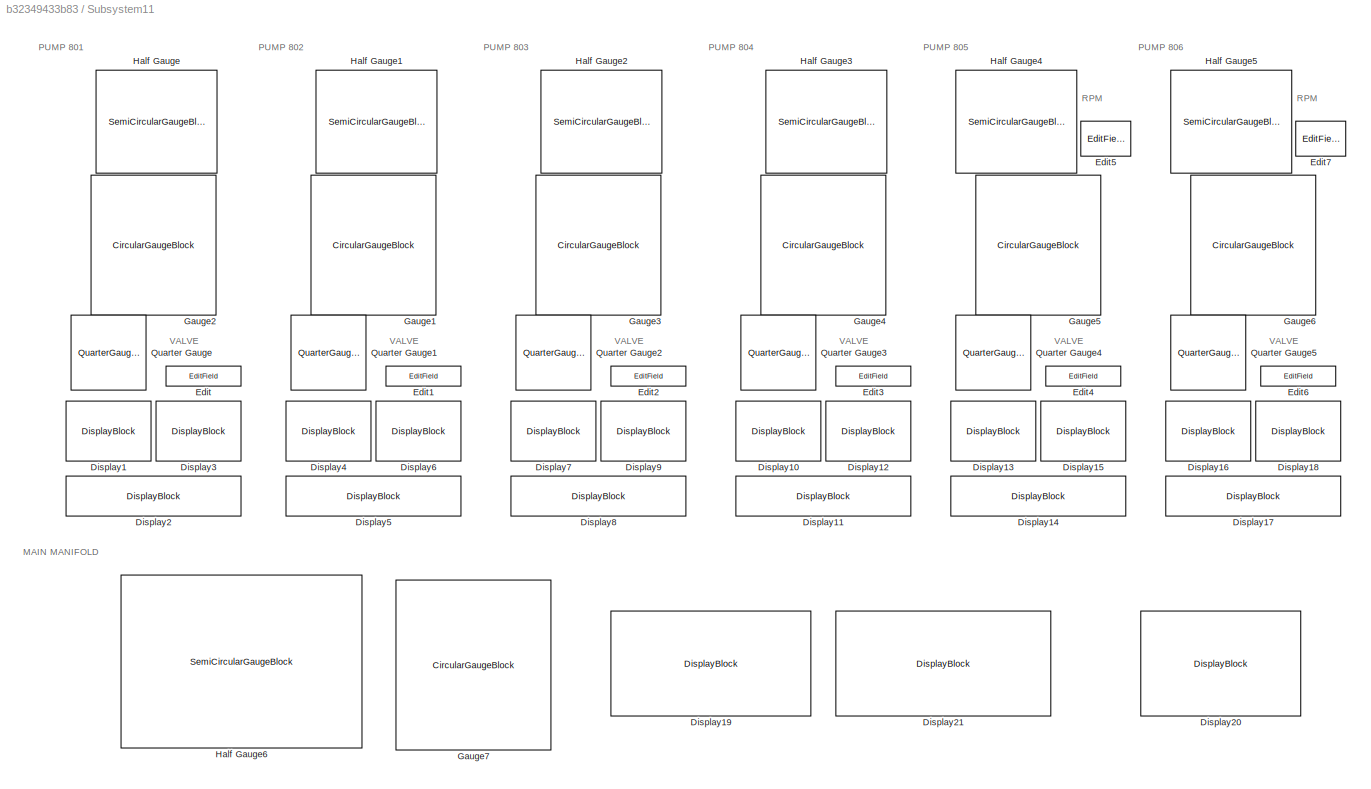
BLOCK [SubSystem] Subsystem11
  Ports = []
  RequestExecContextInheritance = off
BLOCK [DisplayBlock] Subsystem11/Display1
  Format = Custom
  FormatString = %4.1f
  Transparency = 1
BLOCK [DisplayBlock] Subsystem11/Display10
  Commented = on
  Format = Custom
  FormatString = %4.1f
  Transparency = 1
BLOCK [DisplayBlock] Subsystem11/Display11
  Commented = on
  Format = Custom
  FormatString = %4.1f
  Transparency = 1
BLOCK [DisplayBlock] Subsystem11/Display12
  Commented = on
  Format = Custom
  FormatString = %4.1f
  Transparency = 1
BLOCK [DisplayBlock] Subsystem11/Display13
  Format = Custom
  FormatString = %4.1f
  Transparency = 1
BLOCK [DisplayBlock] Subsystem11/Display14
  Format = Custom
  FormatString = %4.1f
  Transparency = 1
BLOCK [DisplayBlock] Subsystem11/Display15
  Format = Custom
  FormatString = %4.1f
  Transparency = 1
BLOCK [DisplayBlock] Subsystem11/Display16
  Commented = on
  Format = Custom
  FormatString = %4.1f
  Transparency = 1
BLOCK [DisplayBlock] Subsystem11/Display17
  Commented = on
  Format = Custom
  FormatString = %4.1f
  Transparency = 1
BLOCK [DisplayBlock] Subsystem11/Display18
  Commented = on
  Format = Custom
  FormatString = %4.1f
  Transparency = 1
BLOCK [DisplayBlock] Subsystem11/Display19
  Format = Custom
  FormatString = %4.1f
  Transparency = 1
BLOCK [DisplayBlock] Subsystem11/Display2
  Format = Custom
  FormatString = %4.1f
  Transparency = 1
BLOCK [DisplayBlock] Subsystem11/Display20
  Format = Custom
  FormatString = %4.1f
  Transparency = 1
BLOCK [DisplayBlock] Subsystem11/Display21
  Format = Custom
  FormatString = %4.1f
  Transparency = 1
BLOCK [DisplayBlock] Subsystem11/Display3
  Format = Custom
  FormatString = %4.1f
  Transparency = 1
BLOCK [DisplayBlock] Subsystem11/Display4
  Format = Custom
  FormatString = %4.1f
  Transparency = 1
BLOCK [DisplayBlock] Subsystem11/Display5
  Format = Custom
  FormatString = %4.1f
  Transparency = 1
BLOCK [DisplayBlock] Subsystem11/Display6
  Format = Custom
  FormatString = %4.1f
  Transparency = 1
BLOCK [DisplayBlock] Subsystem11/Display7
  Format = Custom
  FormatString = %4.1f
  Transparency = 1
BLOCK [DisplayBlock] Subsystem11/Display8
  Format = Custom
  FormatString = %4.1f
  Transparency = 1
BLOCK [DisplayBlock] Subsystem11/Display9
  Format = Custom
  FormatString = %4.1f
  Transparency = 1
BLOCK [EditField] Subsystem11/Edit
  Alignment = Center
  LabelPosition = Hide
  ShowInitialText = on
BLOCK [EditField] Subsystem11/Edit1
  Alignment = Center
  LabelPosition = Hide
  ShowInitialText = on
BLOCK [EditField] Subsystem11/Edit2
  Alignment = Center
  LabelPosition = Hide
  ShowInitialText = on
BLOCK [EditField] Subsystem11/Edit3
  Alignment = Center
  Commented = on
  LabelPosition = Hide
  ShowInitialText = on
BLOCK [EditField] Subsystem11/Edit4
  Alignment = Center
  LabelPosition = Hide
  ShowInitialText = on
BLOCK [EditField] Subsystem11/Edit5
  Alignment = Center
  LabelPosition = Hide
  ShowInitialText = on
BLOCK [EditField] Subsystem11/Edit6
  Alignment = Center
  Commented = on
  LabelPosition = Hide
  ShowInitialText = on
BLOCK [EditField] Subsystem11/Edit7
  Alignment = Center
  Commented = on
  LabelPosition = Hide
  ShowInitialText = on
BLOCK [CircularGaugeBlock] Subsystem11/Gauge1
  ScaleMax = 10
  ScaleMin = 4
  TickInterval = 0.5
BLOCK [CircularGaugeBlock] Subsystem11/Gauge2
  ScaleMax = 10
  ScaleMin = 4
  TickInterval = 0.5
BLOCK [CircularGaugeBlock] Subsystem11/Gauge3
  ScaleMax = 10
  ScaleMin = 4
  TickInterval = 0.5
BLOCK [CircularGaugeBlock] Subsystem11/Gauge4
  Commented = on
  ScaleMax = 10
  ScaleMin = 4
  TickInterval = 0.5
BLOCK [CircularGaugeBlock] Subsystem11/Gauge5
  ScaleMax = 10
  ScaleMin = 4
  TickInterval = 0.5
BLOCK [CircularGaugeBlock] Subsystem11/Gauge6
  Commented = on
  ScaleMax = 10
  ScaleMin = 4
  TickInterval = 0.5
BLOCK [CircularGaugeBlock] Subsystem11/Gauge7
  ScaleMax = 6
  ScaleMin = 5
  TickInterval = 0.2
BLOCK [SemiCircularGaugeBlock] Subsystem11/Half Gauge
  ScaleMax = 1200
  ScaleMin = 600
BLOCK [SemiCircularGaugeBlock] Subsystem11/Half Gauge1
  ScaleMax = 1200
  ScaleMin = 600
BLOCK [SemiCircularGaugeBlock] Subsystem11/Half Gauge2
  ScaleMax = 1200
  ScaleMin = 600
BLOCK [SemiCircularGaugeBlock] Subsystem11/Half Gauge3
  Commented = on
  ScaleMax = 1200
  ScaleMin = 600
BLOCK [SemiCircularGaugeBlock] Subsystem11/Half Gauge4
  ScaleMax = 1200
  ScaleMin = 600
BLOCK [SemiCircularGaugeBlock] Subsystem11/Half Gauge5
  Commented = on
  ScaleMax = 1200
  ScaleMin = 600
BLOCK [SemiCircularGaugeBlock] Subsystem11/Half Gauge6
  ScaleMax = 4500
  ScaleMin = 3700
BLOCK [QuarterGaugeBlock] Subsystem11/Quarter Gauge
  ScaleMax = 90
BLOCK [QuarterGaugeBlock] Subsystem11/Quarter Gauge1
  ScaleMax = 90
BLOCK [QuarterGaugeBlock] Subsystem11/Quarter Gauge2
  ScaleMax = 90
BLOCK [QuarterGaugeBlock] Subsystem11/Quarter Gauge3
  Commented = on
  ScaleMax = 90
BLOCK [QuarterGaugeBlock] Subsystem11/Quarter Gauge4
  ScaleMax = 90
BLOCK [QuarterGaugeBlock] Subsystem11/Quarter Gauge5
  Commented = on
  ScaleMax = 90
BLOCK [SubSystem] Subsystem12
  PortSchema = {"entries":[{"content":{"sides":[{"content":{"connectorIds":["In1","LConn1"]},"type":"ConnectorPlacement.EquallySpacedRectSide","uuid":"b08fe6bd-5385-402a-970e-44a5082313f0"},{"content":{"connectorIds":["RConn1"],"side":"RIGHT"},"type":"ConnectorPlacement.EquallySpacedRectSide","uuid":"0f55c765-16c9-4350-ba94-56cdb1c15382"},{"content":{"connectorIds":["In2","Out1"],"side":"TOP"},"type":"ConnectorP...<+265ch>  <repeated x3 — deduplicated; at blocks: Subsystem12, Subsystem5, Subsystem9>
  Ports = [2, 1, 0, 0, 0, 1, 1]
  RequestExecContextInheritance = off
BLOCK [Outport] Subsystem12/Power
BLOCK [SubSystem] Subsystem12/Pump
  Ports = [2, 1, 0, 0, 0, 0, 1]
  RequestExecContextInheritance = off
BLOCK [Inport] Subsystem12/Pump p
BLOCK [Gain] Subsystem12/Pump/Gain
  Gain = 1/3600
BLOCK [Outport] Subsystem12/Pump/Power
BLOCK [Scope] Subsystem12/Pump/Power and Flow
  Floating = off
  NumInputPorts = 2
  Ports = [2]
  ScopeSpecificationString = Simulink.scopes.TimeScopeBlockCfg('CurrentConfiguration', extmgr.ConfigurationSet(extmgr.Configuration('Core','General UI',true),extmgr.Configuration('Core','Source UI',true),extmgr.Configuration('Sources','WiredSimulink',true,'DataLoggingVariableName','ScopeData2'),extmgr.Configuration('Visuals','Time Domain',true,'SerializedDisplays',{struct('MinYLimReal','-117.9476','MaxYLimReal','1061.5284','Y...<+2066ch>
BLOCK [Product] Subsystem12/Pump/Product1
  Ports = [2, 1]
BLOCK [Lookup_n-D] Subsystem12/Pump/Pump characteristic
  BreakpointsForDimension1 = [0,4.4,5.6,7.2,7.8,8.4,8.8,9.3,9.7,10,10.2,10.3,10.35,10.351,10.352]
  InternalRulePriority = Speed
  InterpMethod = Akima spline
  NumberOfTableDimensions = 1
  Ports = [1, 1]
  RndMeth = Simplest
  Table = [1600,1375,1200,1000,900,800,700,600,500,400,300,200,175,100,0]
BLOCK [Lookup_n-D] Subsystem12/Pump/Pump efficiency
  BreakpointsForDimension1 = [0,100,200,300,400,500,600,700,800,900,1000,1075,1200,1300,1375,1600]
  InternalRulePriority = Speed
  InterpMethod = Akima spline
  NumberOfTableDimensions = 1
  Ports = [1, 1]
  RndMeth = Simplest
  Table = [2,15,26,37,46,55,62,67,71,74,75,76,74.5,72,70,50]
BLOCK [Inport] Subsystem12/Pump/Pump p
  Port = 2
BLOCK [Inport] Subsystem12/Pump/RPM
BLOCK [RateTransition] Subsystem12/Pump/Rate Transition1
  OutPortSampleTime = 1
BLOCK [RateTransition] Subsystem12/Pump/Rate Transition12
  OutPortSampleTime = 1
BLOCK [RateTransition] Subsystem12/Pump/Rate Transition2
  OutPortSampleTime = 1
BLOCK [Reference] Subsystem12/Pump/Simulink-PS Converter1  REF=nesl_utility/Simulink-PS
Converter
  NameLocation = right
  Ports = [1, 0, 0, 0, 0, 0, 1]
  SourceBlock = nesl_utility/Simulink-PS\nConverter
  SourceProductBaseCode = MT,SS
  SourceType = Simulink-PS\nConverter
BLOCK [SubSystem] Subsystem12/Pump/Subsystem
  Ports = [3, 1]
  RequestExecContextInheritance = off
BLOCK [Product] Subsystem12/Pump/Subsystem/Divide1
  Inputs = */
  Ports = [2, 1]
BLOCK [Gain] Subsystem12/Pump/Subsystem/Gain1
  Gain = 0.1
BLOCK [Gain] Subsystem12/Pump/Subsystem/Gain3
  Gain = 10^3
BLOCK [Gain] Subsystem12/Pump/Subsystem/Gain4
  Gain = 0.01
BLOCK [Outport] Subsystem12/Pump/Subsystem/Power
BLOCK [Product] Subsystem12/Pump/Subsystem/Product2
  Ports = [2, 1]
BLOCK [Saturate] Subsystem12/Pump/Subsystem/Saturation
  LowerLimit = 208
  UpperLimit = inf
BLOCK [Inport] Subsystem12/Pump/Subsystem/eff
  Port = 2
BLOCK [Inport] Subsystem12/Pump/Subsystem/flow
BLOCK [Inport] Subsystem12/Pump/Subsystem/p
  Port = 3
BLOCK [PMIOPort] Subsystem12/Pump/output
  Side = Right
BLOCK [Inport] Subsystem12/RPM
  Port = 2
BLOCK [Reference] Subsystem12/Subsea Hydraulic Flow Source  REF=subsea_lib/Sources/Subsea Hydraulic
Flow Source
  Ports = [0, 0, 0, 0, 0, 1, 2]
  SourceBlock = subsea_lib/Sources/Subsea Hydraulic\nFlow Source
  SourceProductName = Subsea
  SourceType = Subsea Hydraulic\nFlow Source
BLOCK [PMIOPort] Subsystem12/Subsea Hydraulic Flow Source1
  Port = 2
  Side = Right
BLOCK [PMIOPort] Subsystem12/Subsea Hydraulic Flow Source2
  Side = Left
BLOCK [SubSystem] Subsystem15
  Ports = [0, 1, 0, 0, 0, 1]
  RequestExecContextInheritance = off
BLOCK [Gain] Subsystem15/Gain
  Gain = 3600
BLOCK [Reference] Subsystem15/PS-Simulink Converter5  REF=nesl_utility/PS-Simulink
Converter
  Ports = [0, 1, 0, 0, 0, 1]
  SourceBlock = nesl_utility/PS-Simulink\nConverter
  SourceProductBaseCode = MT,SS
  SourceType = PS-Simulink\nConverter
BLOCK [Outport] Subsystem15/Q m3//h
BLOCK [PMIOPort] Subsystem15/in
  Side = Left
BLOCK [SubSystem] Subsystem16
  Ports = [4, 4]
  RequestExecContextInheritance = off
BLOCK [Display] Subsystem16/Display
  Decimation = 2
  Ports = [1]
BLOCK [Display] Subsystem16/Display1
  Decimation = 2
  Ports = [1]
BLOCK [Display] Subsystem16/Display2
  Decimation = 2
  Ports = [1]
BLOCK [Display] Subsystem16/Display3
  Decimation = 2
  Ports = [1]
BLOCK [Product] Subsystem16/Divide
  Inputs = */
  Ports = [2, 1]
BLOCK [Product] Subsystem16/Divide1
  Inputs = */
  Ports = [2, 1]
BLOCK [Gain] Subsystem16/Gain
  Gain = 0.1
BLOCK [Gain] Subsystem16/Gain1
  Gain = 1000/3600
BLOCK [Gain] Subsystem16/Gain2
  Gain = 0.1
BLOCK [Gain] Subsystem16/Gain3
  Gain = 100
BLOCK [Outport] Subsystem16/Hyd Eff pipeline
  Port = 4
BLOCK [Outport] Subsystem16/Hyd Eff pump
  Port = 3
BLOCK [Outport] Subsystem16/Hyd Power pipeline
  Port = 2
BLOCK [Outport] Subsystem16/Hyd Power pump
BLOCK [Inport] Subsystem16/In2
  Port = 3
BLOCK [Inport] Subsystem16/In3
  Port = 4
BLOCK [Inport] Subsystem16/In4
  Port = 2
BLOCK [Product] Subsystem16/Product
  Ports = [2, 1]
BLOCK [Product] Subsystem16/Product2
  Ports = [2, 1]
BLOCK [Inport] Subsystem16/Pump pressure
BLOCK [RateTransition] Subsystem16/Rate Transition1
  OutPortSampleTime = 1
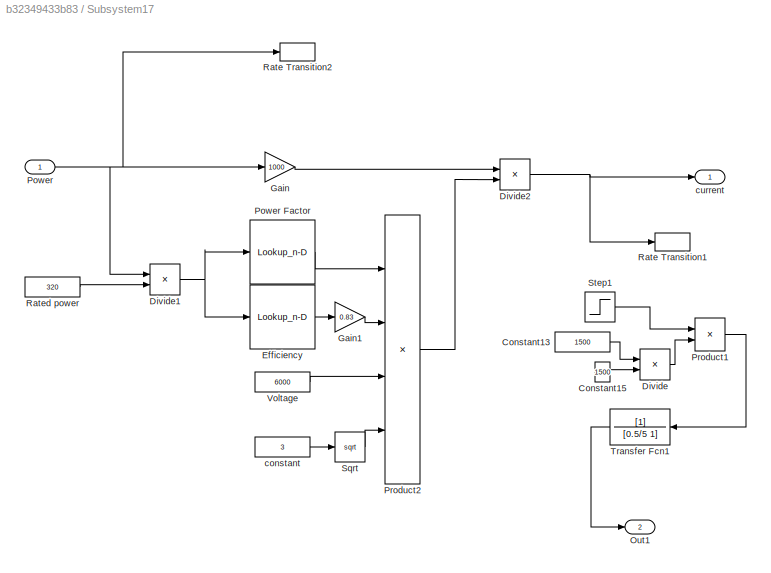
BLOCK [SubSystem] Subsystem17
  PortSchema = {"entries":[{"content":{"sides":[{"content":{"connectorIds":[]},"type":"ConnectorPlacement.EquallySpacedRectSide","uuid":"50845c6e-5ce5-420a-b8f7-3857dcaa504f"},{"content":{"connectorIds":["Out1"],"side":"RIGHT"},"type":"ConnectorPlacement.EquallySpacedRectSide","uuid":"cc8e2bf6-8706-4441-b0e4-e4ffa0c8e657"},{"content":{"connectorIds":[],"side":"TOP"},"type":"ConnectorPlacement.EquallySpacedRectSi...<+393ch>  <repeated x3 — deduplicated; at blocks: Subsystem17, Subsystem2, Subsystem7>
  Ports = [1, 2]
  RequestExecContextInheritance = off
BLOCK [Constant] Subsystem17/Constant13
  Value = 1500
BLOCK [Constant] Subsystem17/Constant15
  Value = 1500
BLOCK [Product] Subsystem17/Divide
  Inputs = */
  Ports = [2, 1]
BLOCK [Product] Subsystem17/Divide1
  Inputs = */
  Ports = [2, 1]
BLOCK [Product] Subsystem17/Divide2
  Inputs = */
  Ports = [2, 1]
BLOCK [Lookup_n-D] Subsystem17/Efficiency
  BreakpointsForDimension1 = [0 0.05 0.25 0.5 0.75 1]
  BreakpointsForDimension2 = [1:3]
  InternalRulePriority = Speed
  NumberOfTableDimensions = 1
  Ports = [1, 1]
  RndMeth = Simplest
  Table = [0 0.3 0.85 0.92 0.93 0.94]
BLOCK [Gain] Subsystem17/Gain
  Gain = 1000
BLOCK [Gain] Subsystem17/Gain1
  Gain = 0.83
BLOCK [Outport] Subsystem17/Out1
  Port = 2
BLOCK [Inport] Subsystem17/Power
BLOCK [Lookup_n-D] Subsystem17/Power Factor
  BreakpointsForDimension1 = [0 0.05 0.25 0.5 0.75 1]
  BreakpointsForDimension2 = [1:3]
  InternalRulePriority = Speed
  NameLocation = top
  NumberOfTableDimensions = 1
  Ports = [1, 1]
  RndMeth = Simplest
  Table = [0 0.3 0.7 0.83 0.85 0.87]
BLOCK [Product] Subsystem17/Product1
  Ports = [2, 1]
BLOCK [Product] Subsystem17/Product2
  Inputs = 4
  Ports = [4, 1]
BLOCK [RateTransition] Subsystem17/Rate Transition1
  OutPortSampleTime = 1
BLOCK [RateTransition] Subsystem17/Rate Transition2
  OutPortSampleTime = 1
BLOCK [Constant] Subsystem17/Rated power
  Value = 320
BLOCK [Sqrt] Subsystem17/Sqrt
BLOCK [Step] Subsystem17/Step1
  SampleTime = 0
  Time = 0.1
BLOCK [TransferFcn] Subsystem17/Transfer Fcn1
  Denominator = [0.5/5 1]
BLOCK [Constant] Subsystem17/Voltage
  Value = 6000
BLOCK [Constant] Subsystem17/constant
  Value = 3
BLOCK [Outport] Subsystem17/current
BLOCK [SubSystem] Subsystem18
  Ports = [4, 4]
  RequestExecContextInheritance = off
BLOCK [Display] Subsystem18/Display
  Decimation = 2
  Ports = [1]
BLOCK [Display] Subsystem18/Display1
  Decimation = 2
  Ports = [1]
BLOCK [Display] Subsystem18/Display2
  Decimation = 2
  Ports = [1]
BLOCK [Display] Subsystem18/Display3
  Decimation = 2
  Ports = [1]
BLOCK [Product] Subsystem18/Divide
  Inputs = */
  Ports = [2, 1]
BLOCK [Product] Subsystem18/Divide1
  Inputs = */
  Ports = [2, 1]
BLOCK [Gain] Subsystem18/Gain
  Gain = 0.1
BLOCK [Gain] Subsystem18/Gain1
  Gain = 1000/3600
BLOCK [Gain] Subsystem18/Gain2
  Gain = 0.1
BLOCK [Gain] Subsystem18/Gain3
  Gain = 100
BLOCK [Outport] Subsystem18/Hyd Eff pipeline
  Port = 4
BLOCK [Outport] Subsystem18/Hyd Eff pump
  Port = 3
BLOCK [Outport] Subsystem18/Hyd Power pipeline
  Port = 2
BLOCK [Outport] Subsystem18/Hyd Power pump
BLOCK [Inport] Subsystem18/In2
  Port = 3
BLOCK [Inport] Subsystem18/In3
  Port = 4
BLOCK [Inport] Subsystem18/In4
  Port = 2
BLOCK [Product] Subsystem18/Product
  Ports = [2, 1]
BLOCK [Product] Subsystem18/Product2
  Ports = [2, 1]
BLOCK [Inport] Subsystem18/Pump pressure
BLOCK [RateTransition] Subsystem18/Rate Transition1
  OutPortSampleTime = 1
BLOCK [SubSystem] Subsystem2
  Ports = [1, 2]
  RequestExecContextInheritance = off
BLOCK [Constant] Subsystem2/Constant13
  Value = 1500
BLOCK [Constant] Subsystem2/Constant15
  Value = 1500
BLOCK [Product] Subsystem2/Divide
  Inputs = */
  Ports = [2, 1]
BLOCK [Product] Subsystem2/Divide1
  Inputs = */
  Ports = [2, 1]
BLOCK [Product] Subsystem2/Divide2
  Inputs = */
  Ports = [2, 1]
BLOCK [Lookup_n-D] Subsystem2/Efficiency
  BreakpointsForDimension1 = [0 0.05 0.25 0.5 0.75 1]
  BreakpointsForDimension2 = [1:3]
  InternalRulePriority = Speed
  NumberOfTableDimensions = 1
  Ports = [1, 1]
  RndMeth = Simplest
  Table = [0 0.3 0.85 0.92 0.93 0.94]
BLOCK [Gain] Subsystem2/Gain
  Gain = 1000
BLOCK [Gain] Subsystem2/Gain1
  Gain = 0.885
BLOCK [Outport] Subsystem2/Out1
  Port = 2
BLOCK [Inport] Subsystem2/Power
BLOCK [Lookup_n-D] Subsystem2/Power Factor
  BreakpointsForDimension1 = [0 0.05 0.25 0.5 0.75 1]
  BreakpointsForDimension2 = [1:3]
  InternalRulePriority = Speed
  NameLocation = top
  NumberOfTableDimensions = 1
  Ports = [1, 1]
  RndMeth = Simplest
  Table = [0 0.3 0.7 0.85 0.88 0.92]
BLOCK [Product] Subsystem2/Product1
  Ports = [2, 1]
BLOCK [Product] Subsystem2/Product2
  Inputs = 4
  Ports = [4, 1]
BLOCK [RateTransition] Subsystem2/Rate Transition1
  OutPortSampleTime = 1
BLOCK [RateTransition] Subsystem2/Rate Transition2
  OutPortSampleTime = 1
BLOCK [Constant] Subsystem2/Rated power
  Value = 320
BLOCK [Sqrt] Subsystem2/Sqrt
BLOCK [Step] Subsystem2/Step1
  SampleTime = 0
  Time = 0.1
BLOCK [TransferFcn] Subsystem2/Transfer Fcn1
  Denominator = [0.5/5 1]
BLOCK [Constant] Subsystem2/Voltage
  Value = 6000
BLOCK [Constant] Subsystem2/constant
  Value = 3
BLOCK [Outport] Subsystem2/current
BLOCK [SubSystem] Subsystem20
  PortSchema = {"entries":[{"content":{"sides":[{"content":{"connectorIds":["In1"]},"type":"ConnectorPlacement.EquallySpacedRectSide","uuid":"50845c6e-5ce5-420a-b8f7-3857dcaa504f"},{"content":{"connectorIds":["Out1"],"side":"RIGHT"},"type":"ConnectorPlacement.EquallySpacedRectSide","uuid":"cc8e2bf6-8706-4441-b0e4-e4ffa0c8e657"},{"content":{"connectorIds":[],"side":"TOP"},"type":"ConnectorPlacement.EquallySpacedR...<+398ch>
  Ports = [2, 2]
  RequestExecContextInheritance = off
BLOCK [Product] Subsystem20/Divide1
  Inputs = */
  Ports = [2, 1]
BLOCK [Product] Subsystem20/Divide2
  Inputs = */
  Ports = [2, 1]
BLOCK [Lookup_n-D] Subsystem20/Efficiency
  BreakpointsForDimension1 = [0 0.05 0.25 0.5 0.75 1]
  BreakpointsForDimension2 = [1:3]
  InternalRulePriority = Speed
  NumberOfTableDimensions = 1
  Ports = [1, 1]
  RndMeth = Simplest
  Table = [0 0.3 0.85 0.956 0.96 0.959]
BLOCK [Gain] Subsystem20/Gain
  Gain = 1000
BLOCK [Inport] Subsystem20/In1
BLOCK [Outport] Subsystem20/Out1
  Port = 2
BLOCK [Inport] Subsystem20/Power
  Port = 2
BLOCK [Lookup_n-D] Subsystem20/Power Factor
  BreakpointsForDimension1 = [0 0.05 0.25 0.5 0.75 1]
  BreakpointsForDimension2 = [1:3]
  InternalRulePriority = Speed
  NameLocation = top
  NumberOfTableDimensions = 1
  Ports = [1, 1]
  RndMeth = Simplest
  Table = [0 0.85 0.97 0.975 0.978 0.98]
BLOCK [Product] Subsystem20/Product2
  Inputs = 4
  Ports = [4, 1]
BLOCK [Product] Subsystem20/Product3
  Ports = [2, 1]
BLOCK [RateTransition] Subsystem20/Rate Transition1
  OutPortSampleTime = 1
BLOCK [RateTransition] Subsystem20/Rate Transition2
  OutPortSampleTime = 1
BLOCK [Constant] Subsystem20/Rated power
  Value = 315
BLOCK [Sqrt] Subsystem20/Sqrt
BLOCK [Step] Subsystem20/Step2
  SampleTime = 0
  Time = 0.1
BLOCK [TransferFcn] Subsystem20/Transfer Fcn2
  Denominator = [0.5/5 1]
BLOCK [Constant] Subsystem20/Voltage
  Value = 500
BLOCK [Constant] Subsystem20/constant
  Value = 3
BLOCK [Outport] Subsystem20/current
BLOCK [SubSystem] Subsystem21
  PortSchema = {"entries":[{"content":{"sides":[{"content":{"connectorIds":["In1","LConn1"]},"type":"ConnectorPlacement.EquallySpacedRectSide","uuid":"00f4933c-19dc-4ef0-b562-805df71cc93e"},{"content":{"connectorIds":["RConn1"],"side":"RIGHT"},"type":"ConnectorPlacement.EquallySpacedRectSide","uuid":"f2b6827a-b045-4dc6-90cf-bf3b3d1f0ae2"},{"content":{"connectorIds":["In2","Out1"],"side":"TOP"},"type":"ConnectorP...<+265ch>
  Ports = [2, 1, 0, 0, 0, 1, 1]
  RequestExecContextInheritance = off
BLOCK [Outport] Subsystem21/Power
BLOCK [SubSystem] Subsystem21/Pump
  Ports = [2, 1, 0, 0, 0, 0, 1]
  RequestExecContextInheritance = off
BLOCK [Inport] Subsystem21/Pump p
BLOCK [Constant] Subsystem21/Pump/Constant
  Value = 1500
BLOCK [Product] Subsystem21/Pump/Divide
  Inputs = */
  Ports = [2, 1]
BLOCK [Gain] Subsystem21/Pump/Gain
  Gain = 1/3600
BLOCK [Outport] Subsystem21/Pump/Power
BLOCK [Scope] Subsystem21/Pump/Power and Flow
  Floating = off
  NumInputPorts = 2
  Ports = [2]
  ScopeSpecificationString = Simulink.scopes.TimeScopeBlockCfg('CurrentConfiguration', extmgr.ConfigurationSet(extmgr.Configuration('Core','General UI',true),extmgr.Configuration('Core','Source UI',true),extmgr.Configuration('Sources','WiredSimulink',true,'DataLoggingVariableName','ScopeData2'),extmgr.Configuration('Visuals','Time Domain',true,'SerializedDisplays',{struct('MinYLimReal','-117.9476','MaxYLimReal','1061.5284','Y...<+2068ch>
BLOCK [Product] Subsystem21/Pump/Product
  Ports = [2, 1]
BLOCK [Lookup_n-D] Subsystem21/Pump/Pump characteristic
  BreakpointsForDimension1 = [0,4.4,5.6,7.2,7.8,8.4,8.8,9.3,9.7,10,10.2,10.3,10.35,10.351,10.352]
  Commented = on
  InternalRulePriority = Speed
  InterpMethod = Akima spline
  NumberOfTableDimensions = 1
  Ports = [1, 1]
  RndMeth = Simplest
  Table = [1600,1375,1200,1000,900,800,700,600,500,400,300,200,175,100,0]
BLOCK [Lookup_n-D] Subsystem21/Pump/Pump characteristic1
  BreakpointsForDimension1 = [1000,1200,1400,1500]
  BreakpointsForDimension2 = [0,4.4,5.6,7.2,7.8,8.4,8.8,9.3,9.7,10,10.2,10.3,10.35,10.351,10.352]
  InternalRulePriority = Speed
  InterpMethod = Akima spline
  Ports = [2, 1]
  RndMeth = Simplest
  Table = reshape([1066,1280,1493,1600,719,971,1249,1375,533,822,1073,1200,0,527.5,853.5,1000,0,388.5,754.4,900,0,5,615.3,800,0,0,532.3,700,0,0,385.6,600,0,0,5,500,0,0,0,400,0,0,0,300,0,0,0,200,0,0,0,175,0,0,0,100,0,0,0,0],4,15)
BLOCK [Lookup_n-D] Subsystem21/Pump/Pump efficiency
  BreakpointsForDimension1 = [0,100,200,300,400,500,600,700,800,900,1000,1075,1200,1300,1375,1600]
  InternalRulePriority = Speed
  InterpMethod = Akima spline
  NumberOfTableDimensions = 1
  Ports = [1, 1]
  RndMeth = Simplest
  Table = [2,15,26,37,46,55,62,67,71,74,75,76,74.5,72,70,50]
BLOCK [Inport] Subsystem21/Pump/Pump p
  Port = 2
BLOCK [Inport] Subsystem21/Pump/RPM
BLOCK [RateTransition] Subsystem21/Pump/Rate Transition1
  OutPortSampleTime = 1
BLOCK [RateTransition] Subsystem21/Pump/Rate Transition12
  OutPortSampleTime = 1
BLOCK [RateTransition] Subsystem21/Pump/Rate Transition2
  OutPortSampleTime = 1
BLOCK [Saturate] Subsystem21/Pump/Saturation
  LowerLimit = 0
  UpperLimit = inf
BLOCK [Saturate] Subsystem21/Pump/Saturation1
  LowerLimit = 0
  UpperLimit = 2
BLOCK [Saturate] Subsystem21/Pump/Saturation2
  LowerLimit = 1
  UpperLimit = inf
BLOCK [Reference] Subsystem21/Pump/Simulink-PS Converter1  REF=nesl_utility/Simulink-PS
Converter
  NameLocation = right
  Ports = [1, 0, 0, 0, 0, 0, 1]
  SourceBlock = nesl_utility/Simulink-PS\nConverter
  SourceProductBaseCode = MT,SS
  SourceType = Simulink-PS\nConverter
BLOCK [SubSystem] Subsystem21/Pump/Subsystem
  Ports = [3, 1]
  RequestExecContextInheritance = off
BLOCK [Product] Subsystem21/Pump/Subsystem/Divide1
  Inputs = */
  Ports = [2, 1]
BLOCK [Gain] Subsystem21/Pump/Subsystem/Gain1
  Gain = 0.1
BLOCK [Gain] Subsystem21/Pump/Subsystem/Gain3
  Gain = 10^3
BLOCK [Gain] Subsystem21/Pump/Subsystem/Gain4
  Gain = 0.01
BLOCK [Outport] Subsystem21/Pump/Subsystem/Power
BLOCK [Product] Subsystem21/Pump/Subsystem/Product2
  Ports = [2, 1]
BLOCK [Saturate] Subsystem21/Pump/Subsystem/Saturation
  LowerLimit = 10
  UpperLimit = inf
BLOCK [Inport] Subsystem21/Pump/Subsystem/eff
  Port = 2
BLOCK [Inport] Subsystem21/Pump/Subsystem/flow
BLOCK [Inport] Subsystem21/Pump/Subsystem/p
  Port = 3
BLOCK [PMIOPort] Subsystem21/Pump/output
  Side = Right
BLOCK [Inport] Subsystem21/RPM
  Port = 2
BLOCK [Reference] Subsystem21/Subsea Hydraulic Flow Source  REF=subsea_lib/Sources/Subsea Hydraulic
Flow Source
  Ports = [0, 0, 0, 0, 0, 1, 2]
  SourceBlock = subsea_lib/Sources/Subsea Hydraulic\nFlow Source
  SourceProductName = Subsea
  SourceType = Subsea Hydraulic\nFlow Source
BLOCK [PMIOPort] Subsystem21/Subsea Hydraulic Flow Source1
  Port = 2
  Side = Right
BLOCK [PMIOPort] Subsystem21/Subsea Hydraulic Flow Source2
  Side = Left
BLOCK [SubSystem] Subsystem22
  Ports = [4, 4]
  RequestExecContextInheritance = off
BLOCK [Display] Subsystem22/Display
  Decimation = 2
  Ports = [1]
BLOCK [Display] Subsystem22/Display1
  Decimation = 2
  Ports = [1]
BLOCK [Display] Subsystem22/Display2
  Decimation = 2
  Ports = [1]
BLOCK [Display] Subsystem22/Display3
  Decimation = 2
  Ports = [1]
BLOCK [Product] Subsystem22/Divide
  Inputs = */
  Ports = [2, 1]
BLOCK [Product] Subsystem22/Divide1
  Inputs = */
  Ports = [2, 1]
BLOCK [Gain] Subsystem22/Gain
  Gain = 0.1
BLOCK [Gain] Subsystem22/Gain1
  Gain = 1000/3600
BLOCK [Gain] Subsystem22/Gain2
  Gain = 0.1
BLOCK [Gain] Subsystem22/Gain3
  Gain = 100
BLOCK [Outport] Subsystem22/Hyd Eff pipeline
  Port = 4
BLOCK [Outport] Subsystem22/Hyd Eff pump
  Port = 3
BLOCK [Outport] Subsystem22/Hyd Power pipeline
  Port = 2
BLOCK [Outport] Subsystem22/Hyd Power pump
BLOCK [Inport] Subsystem22/In2
  Port = 3
BLOCK [Inport] Subsystem22/In3
  Port = 4
BLOCK [Inport] Subsystem22/In4
  Port = 2
BLOCK [Product] Subsystem22/Product
  Ports = [2, 1]
BLOCK [Product] Subsystem22/Product2
  Ports = [2, 1]
BLOCK [Inport] Subsystem22/Pump pressure
BLOCK [RateTransition] Subsystem22/Rate Transition1
  OutPortSampleTime = 1
BLOCK [SubSystem] Subsystem23
  Commented = on
  Ports = [0, 1, 0, 0, 0, 1]
  RequestExecContextInheritance = off
BLOCK [Gain] Subsystem23/Gain
  Gain = 3600
BLOCK [Reference] Subsystem23/PS-Simulink Converter5  REF=nesl_utility/PS-Simulink
Converter
  Ports = [0, 1, 0, 0, 0, 1]
  SourceBlock = nesl_utility/PS-Simulink\nConverter
  SourceProductBaseCode = MT,SS
  SourceType = PS-Simulink\nConverter
BLOCK [Outport] Subsystem23/Q m3//h
BLOCK [PMIOPort] Subsystem23/in
  Side = Left
BLOCK [SubSystem] Subsystem24
  Ports = [0, 1, 0, 0, 0, 1]
  RequestExecContextInheritance = off
BLOCK [Gain] Subsystem24/Gain
  Gain = 3600
BLOCK [Reference] Subsystem24/PS-Simulink Converter5  REF=nesl_utility/PS-Simulink
Converter
  Ports = [0, 1, 0, 0, 0, 1]
  SourceBlock = nesl_utility/PS-Simulink\nConverter
  SourceProductBaseCode = MT,SS
  SourceType = PS-Simulink\nConverter
BLOCK [Outport] Subsystem24/Q m3//h
BLOCK [PMIOPort] Subsystem24/in
  Side = Left
BLOCK [SubSystem] Subsystem25
  Commented = on
  PortSchema = {"entries":[{"content":{"sides":[{"content":{"connectorIds":["In1","LConn1"]},"type":"ConnectorPlacement.EquallySpacedRectSide","uuid":"00f4933c-19dc-4ef0-b562-805df71cc93e"},{"content":{"connectorIds":["RConn1"],"side":"RIGHT"},"type":"ConnectorPlacement.EquallySpacedRectSide","uuid":"f2b6827a-b045-4dc6-90cf-bf3b3d1f0ae2"},{"content":{"connectorIds":["In2","Out1"],"side":"TOP"},"type":"ConnectorP...<+265ch>
  Ports = [2, 1, 0, 0, 0, 1, 1]
  RequestExecContextInheritance = off
BLOCK [Outport] Subsystem25/Power
BLOCK [SubSystem] Subsystem25/Pump
  Ports = [2, 1, 0, 0, 0, 0, 1]
  RequestExecContextInheritance = off
BLOCK [Inport] Subsystem25/Pump p
BLOCK [Gain] Subsystem25/Pump/Gain
  Gain = 1/3600
BLOCK [Outport] Subsystem25/Pump/Power
BLOCK [Scope] Subsystem25/Pump/Power and Flow
  Floating = off
  NumInputPorts = 2
  Ports = [2]
  ScopeSpecificationString = Simulink.scopes.TimeScopeBlockCfg('CurrentConfiguration', extmgr.ConfigurationSet(extmgr.Configuration('Core','General UI',true),extmgr.Configuration('Core','Source UI',true),extmgr.Configuration('Sources','WiredSimulink',true,'DataLoggingVariableName','ScopeData2'),extmgr.Configuration('Visuals','Time Domain',true,'SerializedDisplays',{struct('MinYLimReal','-117.9476','MaxYLimReal','1061.5284','Y...<+2068ch>
BLOCK [Lookup_n-D] Subsystem25/Pump/Pump characteristic
  BreakpointsForDimension1 = [0,4.4,5.6,7.2,7.8,8.4,8.8,9.3,9.7,10,10.2,10.3,10.35,10.351,10.352]
  Commented = on
  InternalRulePriority = Speed
  InterpMethod = Akima spline
  NumberOfTableDimensions = 1
  Ports = [1, 1]
  RndMeth = Simplest
  Table = [1600,1375,1200,1000,900,800,700,600,500,400,300,200,175,100,0]
BLOCK [Lookup_n-D] Subsystem25/Pump/Pump characteristic1
  BreakpointsForDimension1 = [1000,1200,1400,1500]
  BreakpointsForDimension2 = [0,4.4,5.6,7.2,7.8,8.4,8.8,9.3,9.7,10,10.2,10.3,10.35,10.351,10.352]
  InternalRulePriority = Speed
  InterpMethod = Akima spline
  Ports = [2, 1]
  RndMeth = Simplest
  Table = reshape([1066,1280,1493,1600,719,971,1249,1375,533,822,1073,1200,0,527.5,853.5,1000,0,388.5,754.4,900,0,5,615.3,800,0,0,532.3,700,0,0,385.6,600,0,0,5,500,0,0,0,400,0,0,0,300,0,0,0,200,0,0,0,175,0,0,0,100,0,0,0,0],4,15)
BLOCK [Lookup_n-D] Subsystem25/Pump/Pump efficiency
  BreakpointsForDimension1 = [0,100,200,300,400,500,600,700,800,900,1000,1075,1200,1300,1375,1600]
  InternalRulePriority = Speed
  InterpMethod = Akima spline
  NumberOfTableDimensions = 1
  Ports = [1, 1]
  RndMeth = Simplest
  Table = [2,15,26,37,46,55,62,67,71,74,75,76,74.5,72,70,50]
BLOCK [Inport] Subsystem25/Pump/Pump p
  Port = 2
BLOCK [Inport] Subsystem25/Pump/RPM
BLOCK [RateTransition] Subsystem25/Pump/Rate Transition1
  OutPortSampleTime = 0.01
BLOCK [RateTransition] Subsystem25/Pump/Rate Transition12
  OutPortSampleTime = 0.01
BLOCK [RateTransition] Subsystem25/Pump/Rate Transition2
  OutPortSampleTime = 0.01
BLOCK [Saturate] Subsystem25/Pump/Saturation
  LowerLimit = 0
  UpperLimit = inf
BLOCK [Reference] Subsystem25/Pump/Simulink-PS Converter1  REF=nesl_utility/Simulink-PS
Converter
  NameLocation = right
  Ports = [1, 0, 0, 0, 0, 0, 1]
  SourceBlock = nesl_utility/Simulink-PS\nConverter
  SourceProductBaseCode = MT,SS
  SourceType = Simulink-PS\nConverter
BLOCK [SubSystem] Subsystem25/Pump/Subsystem
  Ports = [3, 1]
  RequestExecContextInheritance = off
BLOCK [Product] Subsystem25/Pump/Subsystem/Divide1
  Inputs = */
  Ports = [2, 1]
BLOCK [Gain] Subsystem25/Pump/Subsystem/Gain1
  Gain = 0.1
BLOCK [Gain] Subsystem25/Pump/Subsystem/Gain3
  Gain = 10^3
BLOCK [Gain] Subsystem25/Pump/Subsystem/Gain4
  Gain = 0.01
BLOCK [Outport] Subsystem25/Pump/Subsystem/Power
BLOCK [Product] Subsystem25/Pump/Subsystem/Product2
  Ports = [2, 1]
BLOCK [Saturate] Subsystem25/Pump/Subsystem/Saturation
  LowerLimit = 208
  UpperLimit = inf
BLOCK [Inport] Subsystem25/Pump/Subsystem/eff
  Port = 2
BLOCK [Inport] Subsystem25/Pump/Subsystem/flow
BLOCK [Inport] Subsystem25/Pump/Subsystem/p
  Port = 3
BLOCK [PMIOPort] Subsystem25/Pump/output
  Side = Right
BLOCK [Inport] Subsystem25/RPM
  Port = 2
BLOCK [Reference] Subsystem25/Subsea Hydraulic Flow Source  REF=subsea_lib/Sources/Subsea Hydraulic
Flow Source
  Ports = [0, 0, 0, 0, 0, 1, 2]
  SourceBlock = subsea_lib/Sources/Subsea Hydraulic\nFlow Source
  SourceProductName = Subsea
  SourceType = Subsea Hydraulic\nFlow Source
BLOCK [PMIOPort] Subsystem25/Subsea Hydraulic Flow Source1
  Port = 2
  Side = Right
BLOCK [PMIOPort] Subsystem25/Subsea Hydraulic Flow Source2
  Side = Left
BLOCK [SubSystem] Subsystem26
  Commented = on
  Ports = [1, 1]
  RequestExecContextInheritance = off
BLOCK [Inport] Subsystem26/In1
BLOCK [Outport] Subsystem26/Out1
BLOCK [Product] Subsystem26/Product1
  Ports = [2, 1]
BLOCK [Step] Subsystem26/Step1
  SampleTime = 0
  Time = 0.1
BLOCK [TransferFcn] Subsystem26/Transfer Fcn1
  Denominator = [0.5/5 1]
BLOCK [SubSystem] Subsystem27
  Commented = on
  PortSchema = {"entries":[{"content":{"sides":[{"content":{"connectorIds":["In1"]},"type":"ConnectorPlacement.EquallySpacedRectSide","uuid":"50845c6e-5ce5-420a-b8f7-3857dcaa504f"},{"content":{"connectorIds":["Out1"],"side":"RIGHT"},"type":"ConnectorPlacement.EquallySpacedRectSide","uuid":"cc8e2bf6-8706-4441-b0e4-e4ffa0c8e657"},{"content":{"connectorIds":[],"side":"TOP"},"type":"ConnectorPlacement.EquallySpacedR...<+398ch>
  Ports = [2, 2]
  RequestExecContextInheritance = off
BLOCK [Product] Subsystem27/Divide1
  Inputs = */
  Ports = [2, 1]
BLOCK [Product] Subsystem27/Divide2
  Inputs = */
  Ports = [2, 1]
BLOCK [Lookup_n-D] Subsystem27/Efficiency
  BreakpointsForDimension1 = [0 0.05 0.25 0.5 0.75 1]
  BreakpointsForDimension2 = [1:3]
  InternalRulePriority = Speed
  NumberOfTableDimensions = 1
  Ports = [1, 1]
  RndMeth = Simplest
  Table = [0 0.3 0.85 0.956 0.96 0.959]
BLOCK [Gain] Subsystem27/Gain
  Gain = 1000
BLOCK [Inport] Subsystem27/In1
BLOCK [Outport] Subsystem27/Out1
  Port = 2
BLOCK [Inport] Subsystem27/Power
  Port = 2
BLOCK [Lookup_n-D] Subsystem27/Power Factor
  BreakpointsForDimension1 = [0 0.05 0.25 0.5 0.75 1]
  BreakpointsForDimension2 = [1:3]
  InternalRulePriority = Speed
  NameLocation = top
  NumberOfTableDimensions = 1
  Ports = [1, 1]
  RndMeth = Simplest
  Table = [0 0.3 0.7 0.8 0.88 0.9]
BLOCK [Product] Subsystem27/Product2
  Inputs = 4
  Ports = [4, 1]
BLOCK [Product] Subsystem27/Product3
  Ports = [2, 1]
BLOCK [Constant] Subsystem27/Rated power
  Value = 315
BLOCK [Sqrt] Subsystem27/Sqrt
BLOCK [Step] Subsystem27/Step2
  SampleTime = 0
  Time = 0.1
BLOCK [TransferFcn] Subsystem27/Transfer Fcn2
  Denominator = [0.5/5 1]
BLOCK [Constant] Subsystem27/Voltage
  Value = 500
BLOCK [Constant] Subsystem27/constant
  Value = 3
BLOCK [Outport] Subsystem27/current
BLOCK [SubSystem] Subsystem3
  Ports = [0, 1, 0, 0, 0, 1]
  RequestExecContextInheritance = off
BLOCK [Gain] Subsystem3/Gain
  Gain = 3600
BLOCK [Reference] Subsystem3/PS-Simulink Converter5  REF=nesl_utility/PS-Simulink
Converter
  Ports = [0, 1, 0, 0, 0, 1]
  SourceBlock = nesl_utility/PS-Simulink\nConverter
  SourceProductBaseCode = MT,SS
  SourceType = PS-Simulink\nConverter
BLOCK [Outport] Subsystem3/Q m3//h
BLOCK [PMIOPort] Subsystem3/in
  Side = Left
BLOCK [SubSystem] Subsystem4
  Ports = [0, 1, 0, 0, 0, 1]
  RequestExecContextInheritance = off
BLOCK [Gain] Subsystem4/Gain
  Gain = 3600
BLOCK [Reference] Subsystem4/PS-Simulink Converter5  REF=nesl_utility/PS-Simulink
Converter
  Ports = [0, 1, 0, 0, 0, 1]
  SourceBlock = nesl_utility/PS-Simulink\nConverter
  SourceProductBaseCode = MT,SS
  SourceType = PS-Simulink\nConverter
BLOCK [Outport] Subsystem4/Q m3//h
BLOCK [PMIOPort] Subsystem4/in
  Side = Left
BLOCK [SubSystem] Subsystem5
  Ports = [2, 1, 0, 0, 0, 1, 1]
  RequestExecContextInheritance = off
BLOCK [Outport] Subsystem5/Power
BLOCK [SubSystem] Subsystem5/Pump
  Ports = [2, 1, 0, 0, 0, 0, 1]
  RequestExecContextInheritance = off
BLOCK [Inport] Subsystem5/Pump p
BLOCK [Gain] Subsystem5/Pump/Gain
  Gain = 1/3600
BLOCK [Outport] Subsystem5/Pump/Power
BLOCK [Scope] Subsystem5/Pump/Power and Flow
  Floating = off
  NumInputPorts = 2
  Ports = [2]
  ScopeSpecificationString = Simulink.scopes.TimeScopeBlockCfg('CurrentConfiguration', extmgr.ConfigurationSet(extmgr.Configuration('Core','General UI',true),extmgr.Configuration('Core','Source UI',true),extmgr.Configuration('Sources','WiredSimulink',true,'DataLoggingVariableName','ScopeData2'),extmgr.Configuration('Visuals','Time Domain',true,'SerializedDisplays',{struct('MinYLimReal','-117.9476','MaxYLimReal','1061.5284','Y...<+2065ch>
BLOCK [Product] Subsystem5/Pump/Product1
  Ports = [2, 1]
BLOCK [Lookup_n-D] Subsystem5/Pump/Pump characteristic
  BreakpointsForDimension1 = [0,4.4,5.6,7.2,7.8,8.4,8.8,9.3,9.7,10,10.2,10.3,10.35,10.351,10.352]
  InternalRulePriority = Speed
  InterpMethod = Akima spline
  NumberOfTableDimensions = 1
  Ports = [1, 1]
  RndMeth = Simplest
  Table = [1600,1375,1200,1000,900,800,700,600,500,400,300,200,175,100,0]
BLOCK [Lookup_n-D] Subsystem5/Pump/Pump efficiency
  BreakpointsForDimension1 = [0,100,200,300,400,500,600,700,800,900,1000,1075,1200,1300,1375,1600]
  InternalRulePriority = Speed
  InterpMethod = Akima spline
  NumberOfTableDimensions = 1
  Ports = [1, 1]
  RndMeth = Simplest
  Table = [2,15,26,37,46,55,62,67,71,74,75,76,74.5,72,70,50]
BLOCK [Inport] Subsystem5/Pump/Pump p
  Port = 2
BLOCK [Inport] Subsystem5/Pump/RPM
BLOCK [RateTransition] Subsystem5/Pump/Rate Transition1
  OutPortSampleTime = 1
BLOCK [RateTransition] Subsystem5/Pump/Rate Transition12
  OutPortSampleTime = 1
BLOCK [RateTransition] Subsystem5/Pump/Rate Transition2
  OutPortSampleTime = 1
BLOCK [Reference] Subsystem5/Pump/Simulink-PS Converter1  REF=nesl_utility/Simulink-PS
Converter
  NameLocation = right
  Ports = [1, 0, 0, 0, 0, 0, 1]
  SourceBlock = nesl_utility/Simulink-PS\nConverter
  SourceProductBaseCode = MT,SS
  SourceType = Simulink-PS\nConverter
BLOCK [SubSystem] Subsystem5/Pump/Subsystem
  Ports = [3, 1]
  RequestExecContextInheritance = off
BLOCK [Product] Subsystem5/Pump/Subsystem/Divide1
  Inputs = */
  Ports = [2, 1]
BLOCK [Gain] Subsystem5/Pump/Subsystem/Gain1
  Gain = 0.1
BLOCK [Gain] Subsystem5/Pump/Subsystem/Gain3
  Gain = 10^3
BLOCK [Gain] Subsystem5/Pump/Subsystem/Gain4
  Gain = 0.01
BLOCK [Outport] Subsystem5/Pump/Subsystem/Power
BLOCK [Product] Subsystem5/Pump/Subsystem/Product2
  Ports = [2, 1]
BLOCK [Saturate] Subsystem5/Pump/Subsystem/Saturation
  LowerLimit = 208
  UpperLimit = inf
BLOCK [Inport] Subsystem5/Pump/Subsystem/eff
  Port = 2
BLOCK [Inport] Subsystem5/Pump/Subsystem/flow
BLOCK [Inport] Subsystem5/Pump/Subsystem/p
  Port = 3
BLOCK [PMIOPort] Subsystem5/Pump/output
  Side = Right
BLOCK [Inport] Subsystem5/RPM
  Port = 2
BLOCK [Reference] Subsystem5/Subsea Hydraulic Flow Source  REF=subsea_lib/Sources/Subsea Hydraulic
Flow Source
  Ports = [0, 0, 0, 0, 0, 1, 2]
  SourceBlock = subsea_lib/Sources/Subsea Hydraulic\nFlow Source
  SourceProductName = Subsea
  SourceType = Subsea Hydraulic\nFlow Source
BLOCK [PMIOPort] Subsystem5/Subsea Hydraulic Flow Source1
  Port = 2
  Side = Right
BLOCK [PMIOPort] Subsystem5/Subsea Hydraulic Flow Source2
  Side = Left
BLOCK [SubSystem] Subsystem6
  Ports = [4, 4]
  RequestExecContextInheritance = off
BLOCK [Display] Subsystem6/Display
  Decimation = 2
  Ports = [1]
BLOCK [Display] Subsystem6/Display1
  Decimation = 2
  Ports = [1]
BLOCK [Display] Subsystem6/Display2
  Decimation = 2
  Ports = [1]
BLOCK [Display] Subsystem6/Display3
  Decimation = 2
  Ports = [1]
BLOCK [Product] Subsystem6/Divide
  Inputs = */
  Ports = [2, 1]
BLOCK [Product] Subsystem6/Divide1
  Inputs = */
  Ports = [2, 1]
BLOCK [Gain] Subsystem6/Gain
  Gain = 0.1
BLOCK [Gain] Subsystem6/Gain1
  Gain = 1000/3600
BLOCK [Gain] Subsystem6/Gain2
  Gain = 0.1
BLOCK [Gain] Subsystem6/Gain3
  Gain = 100
BLOCK [Outport] Subsystem6/Hyd Eff pipeline
  Port = 4
BLOCK [Outport] Subsystem6/Hyd Eff pump
  Port = 3
BLOCK [Outport] Subsystem6/Hyd Power pipeline
  Port = 2
BLOCK [Outport] Subsystem6/Hyd Power pump
BLOCK [Inport] Subsystem6/In2
  Port = 3
BLOCK [Inport] Subsystem6/In3
  Port = 4
BLOCK [Inport] Subsystem6/In4
  Port = 2
BLOCK [Product] Subsystem6/Product
  Ports = [2, 1]
BLOCK [Product] Subsystem6/Product2
  Ports = [2, 1]
BLOCK [Inport] Subsystem6/Pump pressure
BLOCK [RateTransition] Subsystem6/Rate Transition1
  OutPortSampleTime = 1
BLOCK [SubSystem] Subsystem7
  Ports = [1, 2]
  RequestExecContextInheritance = off
BLOCK [Constant] Subsystem7/Constant13
  Value = 1500
BLOCK [Constant] Subsystem7/Constant15
  Value = 1500
BLOCK [Product] Subsystem7/Divide
  Inputs = */
  Ports = [2, 1]
BLOCK [Product] Subsystem7/Divide1
  Inputs = */
  Ports = [2, 1]
BLOCK [Product] Subsystem7/Divide2
  Inputs = */
  Ports = [2, 1]
BLOCK [Lookup_n-D] Subsystem7/Efficiency
  BreakpointsForDimension1 = [0 0.05 0.25 0.5 0.75 1]
  BreakpointsForDimension2 = [1:3]
  InternalRulePriority = Speed
  NumberOfTableDimensions = 1
  Ports = [1, 1]
  RndMeth = Simplest
  Table = [0 0.3 0.85 0.92 0.93 0.94]
BLOCK [Gain] Subsystem7/Gain
  Gain = 1000
BLOCK [Gain] Subsystem7/Gain1
  Gain = 0.97
BLOCK [Outport] Subsystem7/Out1
  Port = 2
BLOCK [Inport] Subsystem7/Power
BLOCK [Lookup_n-D] Subsystem7/Power Factor
  BreakpointsForDimension1 = [0 0.05 0.25 0.5 0.75 1]
  BreakpointsForDimension2 = [1:3]
  InternalRulePriority = Speed
  NameLocation = top
  NumberOfTableDimensions = 1
  Ports = [1, 1]
  RndMeth = Simplest
  Table = [0 0.3 0.7 0.83 0.85 0.87]
BLOCK [Product] Subsystem7/Product1
  Ports = [2, 1]
BLOCK [Product] Subsystem7/Product2
  Inputs = 4
  Ports = [4, 1]
BLOCK [RateTransition] Subsystem7/Rate Transition1
  OutPortSampleTime = 1
BLOCK [RateTransition] Subsystem7/Rate Transition2
  OutPortSampleTime = 1
BLOCK [Constant] Subsystem7/Rated power
  Value = 320
BLOCK [Sqrt] Subsystem7/Sqrt
BLOCK [Step] Subsystem7/Step1
  SampleTime = 0
  Time = 0.1
BLOCK [TransferFcn] Subsystem7/Transfer Fcn1
  Denominator = [0.5/5 1]
BLOCK [Constant] Subsystem7/Voltage
  Value = 6000
BLOCK [Constant] Subsystem7/constant
  Value = 3
BLOCK [Outport] Subsystem7/current
BLOCK [SubSystem] Subsystem8
  Ports = [0, 1, 0, 0, 0, 1]
  RequestExecContextInheritance = off
BLOCK [Gain] Subsystem8/Gain
  Gain = 3600
BLOCK [Reference] Subsystem8/PS-Simulink Converter5  REF=nesl_utility/PS-Simulink
Converter
  Ports = [0, 1, 0, 0, 0, 1]
  SourceBlock = nesl_utility/PS-Simulink\nConverter
  SourceProductBaseCode = MT,SS
  SourceType = PS-Simulink\nConverter
BLOCK [Outport] Subsystem8/Q m3//h
BLOCK [PMIOPort] Subsystem8/in
  Side = Left
BLOCK [SubSystem] Subsystem9
  Ports = [2, 1, 0, 0, 0, 1, 1]
  RequestExecContextInheritance = off
BLOCK [Outport] Subsystem9/Power
BLOCK [SubSystem] Subsystem9/Pump
  Ports = [2, 1, 0, 0, 0, 0, 1]
  RequestExecContextInheritance = off
BLOCK [Inport] Subsystem9/Pump p
BLOCK [Gain] Subsystem9/Pump/Gain
  Gain = 1/3600
BLOCK [Outport] Subsystem9/Pump/Power
BLOCK [Scope] Subsystem9/Pump/Power and Flow
  Floating = off
  NumInputPorts = 2
  Ports = [2]
  ScopeSpecificationString = Simulink.scopes.TimeScopeBlockCfg('CurrentConfiguration', extmgr.ConfigurationSet(extmgr.Configuration('Core','General UI',true),extmgr.Configuration('Core','Source UI',true),extmgr.Configuration('Sources','WiredSimulink',true,'DataLoggingVariableName','ScopeData2'),extmgr.Configuration('Visuals','Time Domain',true,'SerializedDisplays',{struct('MinYLimReal','-117.9476','MaxYLimReal','1061.5284','Y...<+2065ch>
BLOCK [Product] Subsystem9/Pump/Product1
  Ports = [2, 1]
BLOCK [Lookup_n-D] Subsystem9/Pump/Pump characteristic
  BreakpointsForDimension1 = [0,4.4,5.6,7.2,7.8,8.4,8.8,9.3,9.7,10,10.2,10.3,10.35,10.351,10.352]
  InternalRulePriority = Speed
  InterpMethod = Akima spline
  NumberOfTableDimensions = 1
  Ports = [1, 1]
  RndMeth = Simplest
  Table = [1600,1375,1200,1000,900,800,700,600,500,400,300,200,175,100,0]
BLOCK [Lookup_n-D] Subsystem9/Pump/Pump efficiency
  BreakpointsForDimension1 = [0,100,200,300,400,500,600,700,800,900,1000,1075,1200,1300,1375,1600]
  InternalRulePriority = Speed
  InterpMethod = Akima spline
  NumberOfTableDimensions = 1
  Ports = [1, 1]
  RndMeth = Simplest
  Table = [2,15,26,37,46,55,62,67,71,74,75,76,74.5,72,70,50]
BLOCK [Inport] Subsystem9/Pump/Pump p
  Port = 2
BLOCK [Inport] Subsystem9/Pump/RPM
BLOCK [RateTransition] Subsystem9/Pump/Rate Transition1
  OutPortSampleTime = 1
BLOCK [RateTransition] Subsystem9/Pump/Rate Transition12
  OutPortSampleTime = 1
BLOCK [RateTransition] Subsystem9/Pump/Rate Transition2
  OutPortSampleTime = 1
BLOCK [Reference] Subsystem9/Pump/Simulink-PS Converter1  REF=nesl_utility/Simulink-PS
Converter
  NameLocation = right
  Ports = [1, 0, 0, 0, 0, 0, 1]
  SourceBlock = nesl_utility/Simulink-PS\nConverter
  SourceProductBaseCode = MT,SS
  SourceType = Simulink-PS\nConverter
BLOCK [SubSystem] Subsystem9/Pump/Subsystem
  Ports = [3, 1]
  RequestExecContextInheritance = off
BLOCK [Product] Subsystem9/Pump/Subsystem/Divide1
  Inputs = */
  Ports = [2, 1]
BLOCK [Gain] Subsystem9/Pump/Subsystem/Gain1
  Gain = 0.1
BLOCK [Gain] Subsystem9/Pump/Subsystem/Gain3
  Gain = 10^3
BLOCK [Gain] Subsystem9/Pump/Subsystem/Gain4
  Gain = 0.01
BLOCK [Outport] Subsystem9/Pump/Subsystem/Power
BLOCK [Product] Subsystem9/Pump/Subsystem/Product2
  Ports = [2, 1]
BLOCK [Saturate] Subsystem9/Pump/Subsystem/Saturation
  LowerLimit = 208
  UpperLimit = inf
BLOCK [Inport] Subsystem9/Pump/Subsystem/eff
  Port = 2
BLOCK [Inport] Subsystem9/Pump/Subsystem/flow
BLOCK [Inport] Subsystem9/Pump/Subsystem/p
  Port = 3
BLOCK [PMIOPort] Subsystem9/Pump/output
  Side = Right
BLOCK [Inport] Subsystem9/RPM
  Port = 2
BLOCK [Reference] Subsystem9/Subsea Hydraulic Flow Source  REF=subsea_lib/Sources/Subsea Hydraulic
Flow Source
  Ports = [0, 0, 0, 0, 0, 1, 2]
  SourceBlock = subsea_lib/Sources/Subsea Hydraulic\nFlow Source
  SourceProductName = Subsea
  SourceType = Subsea Hydraulic\nFlow Source
BLOCK [PMIOPort] Subsystem9/Subsea Hydraulic Flow Source1
  Port = 2
  Side = Right
BLOCK [PMIOPort] Subsystem9/Subsea Hydraulic Flow Source2
  Side = Left
BLOCK [Sum] Subtract1
  IconShape = rectangular
  Inputs = +-
  Ports = [2, 1]
BLOCK [Sum] Subtract2
  IconShape = rectangular
  Inputs = +-
  Ports = [2, 1]
BLOCK [Sum] Subtract3
  IconShape = rectangular
  Inputs = +-
  Ports = [2, 1]
BLOCK [Sum] Subtract5
  IconShape = rectangular
  Inputs = +-
  Ports = [2, 1]
BLOCK [Sum] Subtract6
  Commented = on
  IconShape = rectangular
  Inputs = +-
  Ports = [2, 1]
BLOCK [SubSystem] Tank
  AncestorBlock = comp_library/Tank
  Ports = [0, 0, 0, 0, 0, 1]
  RequestExecContextInheritance = off
BLOCK [PMIOPort] Tank/Conn1
  Side = Left
BLOCK [Reference] Tank/Custom Hydraulic Fluid1  REF=subsea_lib/Environment Elements/Custom Hydraulic
Fluid
  Ports = [0, 0, 0, 0, 0, 0, 1]
  SourceBlock = subsea_lib/Environment Elements/Custom Hydraulic\nFluid
  SourceProductName = Subsea
  SourceType = Custom Hydraulic\nFluid
BLOCK [Reference] Tank/Solver Configuration1  REF=nesl_utility/Solver
Configuration
  Ports = [0, 0, 0, 0, 0, 0, 1]
  SourceBlock = nesl_utility/Solver\nConfiguration
  SourceProductBaseCode = SS
  SourceType = Solver\nConfiguration
BLOCK [Reference] Tank/Subsea Hydraulic Reference2  REF=subsea_lib/Environment Elements/Subsea Hydraulic
Reference
  NameLocation = right
  Ports = [0, 0, 0, 0, 0, 1]
  SourceBlock = subsea_lib/Environment Elements/Subsea Hydraulic\nReference
  SourceProductName = Subsea
  SourceType = Subsea Hydraulic\nReference
BLOCK [TransferFcn] Transfer Fcn1
  Commented = on
  Denominator = [0.5/5 1]
BLOCK [TransferFcn] Transfer Fcn4
  Denominator = [0.5/5 1]
BLOCK [SubSystem] restriction
  Ports = [1, 0, 0, 0, 0, 1, 1]
  RequestExecContextInheritance = off
BLOCK [Inport] restriction/In1
BLOCK [Reference] restriction/Simulink-PS Converter4  REF=nesl_utility/Simulink-PS
Converter
  NameLocation = right
  Ports = [1, 0, 0, 0, 0, 0, 1]
  SourceBlock = nesl_utility/Simulink-PS\nConverter
  SourceProductBaseCode = MT,SS
  SourceType = Simulink-PS\nConverter
BLOCK [Reference] restriction/Variable kv Hydraulic Flow Element  REF=subsea_lib/Valves/Variable kv
Hydraulic Flow
Element
  Ports = [0, 0, 0, 0, 0, 2, 1]
  SourceBlock = subsea_lib/Valves/Variable kv\nHydraulic Flow\nElement
  SourceProductName = Subsea
  SourceType = Variable kv\nHydraulic Flow\nElement
BLOCK [PMIOPort] restriction/Variable kv Hydraulic Flow Element1
  Side = Left
BLOCK [PMIOPort] restriction/Variable kv Hydraulic Flow Element2
  Port = 2
  Side = Right
BLOCK [Lookup_n-D] restriction/buterfly
  BreakpointsForDimension1 = [0 45 90]
  BreakpointsForDimension2 = [1:3]
  InternalRulePriority = Speed
  NumberOfTableDimensions = 1
  Ports = [1, 1]
  RndMeth = Simplest
  Table = [0 900 1800]
ANNOTATION (root): 1. Find components in the Simscape library . For more information, see Physical Modeling - Blocks . 2. Connect the components to form a physical network. For more information, see Essential Steps for Constructing a Physical Model . 3. Explore simulation results using sscexplore
ANNOTATION (root): MANIFOLD
ANNOTATION (root): PUMP 801
ANNOTATION (root): PUMP 802
ANNOTATION (root): PUMP 803
ANNOTATION (root): PUMP 805
ANNOTATION (root): Simscape Library Resources
ANNOTATION Subsystem11: RPM
ANNOTATION Subsystem11: VALVE
ANNOTATION Subsystem11: MAIN MANIFOLD
ANNOTATION Subsystem11: PUMP 801
ANNOTATION Subsystem11: PUMP 802
ANNOTATION Subsystem11: PUMP 803
ANNOTATION Subsystem11: PUMP 804
ANNOTATION Subsystem11: PUMP 805
ANNOTATION Subsystem11: PUMP 806
NET Add1:1 -> Display17:1, Divide:2, Rate Transition2:1
NET Add:1 -> Display25:1, Rate Transition5:1, Subsystem10:2
NET Butterfly valve Z011/In1:1 -> Butterfly valve Z011/Rate Transition1:1, Butterfly valve Z011/Transfer Fcn2:1
LINE Butterfly valve Z011/Transfer Fcn2:1 -> Butterfly valve Z011/Z-011A DN 350:1
LINE Butterfly valve Z011/Z-011A DN 350:1 -> Butterfly valve Z011/Simulink-PS Converter4:1
NET Butterfly valve Z1/In1:1 -> Butterfly valve Z1/Rate Transition1:1, Butterfly valve Z1/Transfer Fcn2:1
LINE Butterfly valve Z1/Transfer Fcn2:1 -> Butterfly valve Z1/Z-011A DN 350:1
LINE Butterfly valve Z1/Z-011A DN 350:1 -> Butterfly valve Z1/Simulink-PS Converter4:1
NET Butterfly valve Z2/In1:1 -> Butterfly valve Z2/Rate Transition1:1, Butterfly valve Z2/Transfer Fcn2:1
LINE Butterfly valve Z2/Transfer Fcn2:1 -> Butterfly valve Z2/Z-011A DN 350:1
LINE Butterfly valve Z2/Z-011A DN 350:1 -> Butterfly valve Z2/Simulink-PS Converter4:1
NET Butterfly valve Z4/In1:1 -> Butterfly valve Z4/Rate Transition1:1, Butterfly valve Z4/Transfer Fcn2:1
LINE Butterfly valve Z4/Transfer Fcn2:1 -> Butterfly valve Z4/Z-011A DN 350:1
LINE Butterfly valve Z4/Z-011A DN 350:1 -> Butterfly valve Z4/Simulink-PS Converter4:1
LINE Butterfly valve Z5/In1:1 -> Butterfly valve Z5/Z-011A DN 350:1
LINE Butterfly valve Z5/Z-011A DN 350:1 -> Butterfly valve Z5/Simulink-PS Converter4:1
LINE Constant1:1 -> Manual Switch1:2
LINE Constant2:1 -> Manual Switch1:1
NET Divide:1 -> Display19:1, Gain2:1
LINE From12:1 -> Add1:4
LINE From14:1 -> Divide:1
LINE From1:1 -> Subtract1:1
LINE From2:1 -> Add1:2
LINE From3:1 -> Add1:3
LINE From4:1 -> Subtract3:1
LINE From5:1 -> Subtract5:1
LINE From6:1 -> Subtract2:1
LINE From7:1 -> Subtract6:1
LINE From:1 -> Add1:1
LINE Gain2:1 -> Rate Transition1:1
LINE Opening angle1:1 -> Butterfly valve Z011:1
LINE Opening angle2:1 -> Butterfly valve Z1:1
LINE Opening angle3:1 -> Butterfly valve Z2:1
LINE Opening angle5:1 -> Butterfly valve Z4:1
LINE Opening angle6:1 -> Transfer Fcn1:1
LINE Opening angle:1 -> Transfer Fcn4:1
LINE PS-Simulink Converter10:1 -> Subtract3:2
NET PS-Simulink Converter11:1 -> Display37:1, Subsystem18:3
LINE PS-Simulink Converter12:1 -> Subtract5:2
NET PS-Simulink Converter13:1 -> Display48:1, Subsystem22:3
NET PS-Simulink Converter14:1 -> Display50:1, Goto8:1, Subsystem22:1
LINE PS-Simulink Converter15:1 -> Display47:1
LINE PS-Simulink Converter16:1 -> Return press1:1
NET PS-Simulink Converter17:1 -> Display55:1, Goto10:1
NET PS-Simulink Converter1:1 -> Display2:1, Goto2:1, Subsystem16:1
LINE PS-Simulink Converter22:1 -> Subtract2:2
NET PS-Simulink Converter25:1 -> Display22:1, Rate Transition4:1, Subsystem10:1
LINE PS-Simulink Converter26:1 -> Display23:1
LINE PS-Simulink Converter27:1 -> Return press1:2
LINE PS-Simulink Converter28:1 -> Display52:1
LINE PS-Simulink Converter29:1 -> Subtract6:2
LINE PS-Simulink Converter2:1 -> Display5:1
LINE PS-Simulink Converter30:1 -> Display53:1
NET PS-Simulink Converter3:1 -> Display6:1, Subsystem16:3
NET PS-Simulink Converter4:1 -> Display8:1, Goto1:1, Subsystem6:1
LINE PS-Simulink Converter5:1 -> Display34:1
LINE PS-Simulink Converter6:1 -> Subtract1:2
NET PS-Simulink Converter7:1 -> Display35:1, Subsystem6:3
NET PS-Simulink Converter8:1 -> Display39:1, Goto3:1, Subsystem18:1
LINE PS-Simulink Converter9:1 -> Display36:1
LINE RPM2:1 -> Subsystem27:1
LINE RPM:1 -> Subsystem20:1
LINE Subsystem/Gain:1 -> Subsystem/Q m3//h:1
LINE Subsystem/PS-Simulink Converter5:1 -> Subsystem/Gain:1
LINE Subsystem1/Gain:1 -> Subsystem1/Q m3//h:1
LINE Subsystem1/PS-Simulink Converter5:1 -> Subsystem1/Gain:1
LINE Subsystem10/Gain1:1 -> Subsystem10/Product:2
LINE Subsystem10/Gain:1 -> Subsystem10/Product:1
LINE Subsystem10/In1:1 -> Subsystem10/Gain:1
NET Subsystem10/Product:1 -> Subsystem10/Display18:1, Subsystem10/Rate Transition3:1, Subsystem10/power_pipeline1:1
LINE Subsystem10/power_pipeline:1 -> Subsystem10/Gain1:1
LINE Subsystem10:1 -> Goto4:1
LINE Subsystem12/Pump p:1 -> Subsystem12/Pump:2
NET Subsystem12/Pump/Gain:1 -> Subsystem12/Pump/Simulink-PS Converter1:1, Subsystem12/Pump/Subsystem:1
NET Subsystem12/Pump/Product1:1 -> Subsystem12/Pump/Gain:1, Subsystem12/Pump/Power and Flow:1, Subsystem12/Pump/Rate Transition2:1
NET Subsystem12/Pump/Pump characteristic:1 -> Subsystem12/Pump/Product1:2, Subsystem12/Pump/Pump efficiency:1
LINE Subsystem12/Pump/Pump efficiency:1 -> Subsystem12/Pump/Subsystem:2
NET Subsystem12/Pump/Pump p:1 -> Subsystem12/Pump/Pump characteristic:1, Subsystem12/Pump/Rate Transition1:1, Subsystem12/Pump/Subsystem:3
LINE Subsystem12/Pump/RPM:1 -> Subsystem12/Pump/Product1:1
LINE Subsystem12/Pump/Subsystem/Divide1:1 -> Subsystem12/Pump/Subsystem/Gain3:1
LINE Subsystem12/Pump/Subsystem/Gain1:1 -> Subsystem12/Pump/Subsystem/Product2:2
LINE Subsystem12/Pump/Subsystem/Gain3:1 -> Subsystem12/Pump/Subsystem/Saturation:1
LINE Subsystem12/Pump/Subsystem/Gain4:1 -> Subsystem12/Pump/Subsystem/Divide1:2
LINE Subsystem12/Pump/Subsystem/Product2:1 -> Subsystem12/Pump/Subsystem/Divide1:1
LINE Subsystem12/Pump/Subsystem/Saturation:1 -> Subsystem12/Pump/Subsystem/Power:1
LINE Subsystem12/Pump/Subsystem/eff:1 -> Subsystem12/Pump/Subsystem/Gain4:1
LINE Subsystem12/Pump/Subsystem/flow:1 -> Subsystem12/Pump/Subsystem/Product2:1
LINE Subsystem12/Pump/Subsystem/p:1 -> Subsystem12/Pump/Subsystem/Gain1:1
NET Subsystem12/Pump/Subsystem:1 -> Subsystem12/Pump/Power and Flow:2, Subsystem12/Pump/Power:1, Subsystem12/Pump/Rate Transition12:1
LINE Subsystem12/Pump:1 -> Subsystem12/Power:1
LINE Subsystem12/RPM:1 -> Subsystem12/Pump:1
NET Subsystem12:1 -> Display3:1, Goto5:1, Subsystem16:4, Subsystem2:1
LINE Subsystem15/Gain:1 -> Subsystem15/Q m3//h:1
LINE Subsystem15/PS-Simulink Converter5:1 -> Subsystem15/Gain:1
NET Subsystem15:1 -> Add:1, Display24:1
NET Subsystem16/Divide1:1 -> Subsystem16/Display2:1, Subsystem16/Hyd Eff pump:1
NET Subsystem16/Divide:1 -> Subsystem16/Display3:1, Subsystem16/Gain3:1, Subsystem16/Hyd Eff pipeline:1
NET Subsystem16/Gain1:1 -> Subsystem16/Product2:1, Subsystem16/Product:2
LINE Subsystem16/Gain2:1 -> Subsystem16/Product2:2
LINE Subsystem16/Gain3:1 -> Subsystem16/Rate Transition1:1
LINE Subsystem16/Gain:1 -> Subsystem16/Product:1
LINE Subsystem16/In2:1 -> Subsystem16/Gain2:1
NET Subsystem16/In3:1 -> Subsystem16/Divide1:2, Subsystem16/Divide:2
LINE Subsystem16/In4:1 -> Subsystem16/Gain1:1
NET Subsystem16/Product2:1 -> Subsystem16/Display1:1, Subsystem16/Divide:1, Subsystem16/Hyd Power pipeline:1
NET Subsystem16/Product:1 -> Subsystem16/Display:1, Subsystem16/Divide1:1, Subsystem16/Hyd Power pump:1
LINE Subsystem16/Pump pressure:1 -> Subsystem16/Gain:1
LINE Subsystem16:1 -> Display27:1
LINE Subsystem16:2 -> Display28:1
LINE Subsystem16:3 -> Display29:1
LINE Subsystem16:4 -> Display30:1
LINE Subsystem17/Constant13:1 -> Subsystem17/Divide:1
LINE Subsystem17/Constant15:1 -> Subsystem17/Divide:2
NET Subsystem17/Divide1:1 -> Subsystem17/Efficiency:1, Subsystem17/Power Factor:1
NET Subsystem17/Divide2:1 -> Subsystem17/Rate Transition1:1, Subsystem17/current:1
LINE Subsystem17/Divide:1 -> Subsystem17/Product1:2
LINE Subsystem17/Efficiency:1 -> Subsystem17/Gain1:1
LINE Subsystem17/Gain1:1 -> Subsystem17/Product2:2
LINE Subsystem17/Gain:1 -> Subsystem17/Divide2:1
LINE Subsystem17/Power Factor:1 -> Subsystem17/Product2:1
NET Subsystem17/Power:1 -> Subsystem17/Divide1:1, Subsystem17/Gain:1, Subsystem17/Rate Transition2:1
LINE Subsystem17/Product1:1 -> Subsystem17/Transfer Fcn1:1
LINE Subsystem17/Product2:1 -> Subsystem17/Divide2:2
LINE Subsystem17/Rated power:1 -> Subsystem17/Divide1:2
LINE Subsystem17/Sqrt:1 -> Subsystem17/Product2:4
LINE Subsystem17/Step1:1 -> Subsystem17/Product1:1
LINE Subsystem17/Transfer Fcn1:1 -> Subsystem17/Out1:1
LINE Subsystem17/Voltage:1 -> Subsystem17/Product2:3
LINE Subsystem17/constant:1 -> Subsystem17/Sqrt:1
LINE Subsystem17:1 -> Display9:1
LINE Subsystem17:2 -> Subsystem5:2
NET Subsystem18/Divide1:1 -> Subsystem18/Display2:1, Subsystem18/Hyd Eff pump:1
NET Subsystem18/Divide:1 -> Subsystem18/Display3:1, Subsystem18/Gain3:1, Subsystem18/Hyd Eff pipeline:1
NET Subsystem18/Gain1:1 -> Subsystem18/Product2:1, Subsystem18/Product:2
LINE Subsystem18/Gain2:1 -> Subsystem18/Product2:2
LINE Subsystem18/Gain3:1 -> Subsystem18/Rate Transition1:1
LINE Subsystem18/Gain:1 -> Subsystem18/Product:1
LINE Subsystem18/In2:1 -> Subsystem18/Gain2:1
NET Subsystem18/In3:1 -> Subsystem18/Divide1:2, Subsystem18/Divide:2
LINE Subsystem18/In4:1 -> Subsystem18/Gain1:1
NET Subsystem18/Product2:1 -> Subsystem18/Display1:1, Subsystem18/Divide:1, Subsystem18/Hyd Power pipeline:1
NET Subsystem18/Product:1 -> Subsystem18/Display:1, Subsystem18/Divide1:1, Subsystem18/Hyd Power pump:1
LINE Subsystem18/Pump pressure:1 -> Subsystem18/Gain:1
LINE Subsystem18:1 -> Display12:1
LINE Subsystem18:2 -> Display13:1
LINE Subsystem18:3 -> Display14:1
LINE Subsystem18:4 -> Display16:1
NET Subsystem1:1 -> Display1:1, Subsystem16:2
LINE Subsystem2/Constant13:1 -> Subsystem2/Divide:1
LINE Subsystem2/Constant15:1 -> Subsystem2/Divide:2
NET Subsystem2/Divide1:1 -> Subsystem2/Efficiency:1, Subsystem2/Power Factor:1
NET Subsystem2/Divide2:1 -> Subsystem2/Rate Transition1:1, Subsystem2/current:1
LINE Subsystem2/Divide:1 -> Subsystem2/Product1:2
LINE Subsystem2/Efficiency:1 -> Subsystem2/Gain1:1
LINE Subsystem2/Gain1:1 -> Subsystem2/Product2:2
LINE Subsystem2/Gain:1 -> Subsystem2/Divide2:1
LINE Subsystem2/Power Factor:1 -> Subsystem2/Product2:1
NET Subsystem2/Power:1 -> Subsystem2/Divide1:1, Subsystem2/Gain:1, Subsystem2/Rate Transition2:1
LINE Subsystem2/Product1:1 -> Subsystem2/Transfer Fcn1:1
LINE Subsystem2/Product2:1 -> Subsystem2/Divide2:2
LINE Subsystem2/Rated power:1 -> Subsystem2/Divide1:2
LINE Subsystem2/Sqrt:1 -> Subsystem2/Product2:4
LINE Subsystem2/Step1:1 -> Subsystem2/Product1:1
LINE Subsystem2/Transfer Fcn1:1 -> Subsystem2/Out1:1
LINE Subsystem2/Voltage:1 -> Subsystem2/Product2:3
LINE Subsystem2/constant:1 -> Subsystem2/Sqrt:1
NET Subsystem20/Divide1:1 -> Subsystem20/Efficiency:1, Subsystem20/Power Factor:1
NET Subsystem20/Divide2:1 -> Subsystem20/Rate Transition1:1, Subsystem20/current:1
LINE Subsystem20/Efficiency:1 -> Subsystem20/Product2:2
LINE Subsystem20/Gain:1 -> Subsystem20/Divide2:1
LINE Subsystem20/In1:1 -> Subsystem20/Product3:2
LINE Subsystem20/Power Factor:1 -> Subsystem20/Product2:1
NET Subsystem20/Power:1 -> Subsystem20/Divide1:1, Subsystem20/Gain:1, Subsystem20/Rate Transition2:1
LINE Subsystem20/Product2:1 -> Subsystem20/Divide2:2
LINE Subsystem20/Product3:1 -> Subsystem20/Transfer Fcn2:1
LINE Subsystem20/Rated power:1 -> Subsystem20/Divide1:2
LINE Subsystem20/Sqrt:1 -> Subsystem20/Product2:4
LINE Subsystem20/Step2:1 -> Subsystem20/Product3:1
LINE Subsystem20/Transfer Fcn2:1 -> Subsystem20/Out1:1
LINE Subsystem20/Voltage:1 -> Subsystem20/Product2:3
LINE Subsystem20/constant:1 -> Subsystem20/Sqrt:1
LINE Subsystem20:1 -> Display51:1
LINE Subsystem20:2 -> Subsystem21:2
LINE Subsystem21/Pump p:1 -> Subsystem21/Pump:2
LINE Subsystem21/Pump/Constant:1 -> Subsystem21/Pump/Divide:1
LINE Subsystem21/Pump/Divide:1 -> Subsystem21/Pump/Saturation1:1
NET Subsystem21/Pump/Gain:1 -> Subsystem21/Pump/Simulink-PS Converter1:1, Subsystem21/Pump/Subsystem:1
LINE Subsystem21/Pump/Product:1 -> Subsystem21/Pump/Pump efficiency:1
LINE Subsystem21/Pump/Pump characteristic1:1 -> Subsystem21/Pump/Saturation:1
LINE Subsystem21/Pump/Pump efficiency:1 -> Subsystem21/Pump/Subsystem:2
NET Subsystem21/Pump/Pump p:1 -> Subsystem21/Pump/Pump characteristic1:2, Subsystem21/Pump/Rate Transition1:1, Subsystem21/Pump/Subsystem:3
NET Subsystem21/Pump/RPM:1 -> Subsystem21/Pump/Pump characteristic1:1, Subsystem21/Pump/Saturation2:1
LINE Subsystem21/Pump/Saturation1:1 -> Subsystem21/Pump/Product:2
LINE Subsystem21/Pump/Saturation2:1 -> Subsystem21/Pump/Divide:2
NET Subsystem21/Pump/Saturation:1 -> Subsystem21/Pump/Gain:1, Subsystem21/Pump/Power and Flow:1, Subsystem21/Pump/Product:1, Subsystem21/Pump/Rate Transition2:1
LINE Subsystem21/Pump/Subsystem/Divide1:1 -> Subsystem21/Pump/Subsystem/Gain3:1
LINE Subsystem21/Pump/Subsystem/Gain1:1 -> Subsystem21/Pump/Subsystem/Product2:2
LINE Subsystem21/Pump/Subsystem/Gain3:1 -> Subsystem21/Pump/Subsystem/Saturation:1
LINE Subsystem21/Pump/Subsystem/Gain4:1 -> Subsystem21/Pump/Subsystem/Divide1:2
LINE Subsystem21/Pump/Subsystem/Product2:1 -> Subsystem21/Pump/Subsystem/Divide1:1
LINE Subsystem21/Pump/Subsystem/Saturation:1 -> Subsystem21/Pump/Subsystem/Power:1
LINE Subsystem21/Pump/Subsystem/eff:1 -> Subsystem21/Pump/Subsystem/Gain4:1
LINE Subsystem21/Pump/Subsystem/flow:1 -> Subsystem21/Pump/Subsystem/Product2:1
LINE Subsystem21/Pump/Subsystem/p:1 -> Subsystem21/Pump/Subsystem/Gain1:1
NET Subsystem21/Pump/Subsystem:1 -> Subsystem21/Pump/Power and Flow:2, Subsystem21/Pump/Power:1, Subsystem21/Pump/Rate Transition12:1
LINE Subsystem21/Pump:1 -> Subsystem21/Power:1
LINE Subsystem21/RPM:1 -> Subsystem21/Pump:1
NET Subsystem21:1 -> Display45:1, Goto9:1, Subsystem20:2, Subsystem22:4
NET Subsystem22/Divide1:1 -> Subsystem22/Display2:1, Subsystem22/Hyd Eff pump:1
NET Subsystem22/Divide:1 -> Subsystem22/Display3:1, Subsystem22/Gain3:1, Subsystem22/Hyd Eff pipeline:1
NET Subsystem22/Gain1:1 -> Subsystem22/Product2:1, Subsystem22/Product:2
LINE Subsystem22/Gain2:1 -> Subsystem22/Product2:2
LINE Subsystem22/Gain3:1 -> Subsystem22/Rate Transition1:1
LINE Subsystem22/Gain:1 -> Subsystem22/Product:1
LINE Subsystem22/In2:1 -> Subsystem22/Gain2:1
NET Subsystem22/In3:1 -> Subsystem22/Divide1:2, Subsystem22/Divide:2
LINE Subsystem22/In4:1 -> Subsystem22/Gain1:1
NET Subsystem22/Product2:1 -> Subsystem22/Display1:1, Subsystem22/Divide:1, Subsystem22/Hyd Power pipeline:1
NET Subsystem22/Product:1 -> Subsystem22/Display:1, Subsystem22/Divide1:1, Subsystem22/Hyd Power pump:1
LINE Subsystem22/Pump pressure:1 -> Subsystem22/Gain:1
LINE Subsystem22:1 -> Display21:1
LINE Subsystem22:2 -> Display43:1
LINE Subsystem22:3 -> Display44:1
LINE Subsystem22:4 -> Display46:1
LINE Subsystem23/Gain:1 -> Subsystem23/Q m3//h:1
LINE Subsystem23/PS-Simulink Converter5:1 -> Subsystem23/Gain:1
LINE Subsystem23:1 -> Display54:1
LINE Subsystem24/Gain:1 -> Subsystem24/Q m3//h:1
LINE Subsystem24/PS-Simulink Converter5:1 -> Subsystem24/Gain:1
NET Subsystem24:1 -> Display49:1, Subsystem22:2
LINE Subsystem25/Pump p:1 -> Subsystem25/Pump:2
NET Subsystem25/Pump/Gain:1 -> Subsystem25/Pump/Simulink-PS Converter1:1, Subsystem25/Pump/Subsystem:1
LINE Subsystem25/Pump/Pump characteristic1:1 -> Subsystem25/Pump/Saturation:1
LINE Subsystem25/Pump/Pump efficiency:1 -> Subsystem25/Pump/Subsystem:2
NET Subsystem25/Pump/Pump p:1 -> Subsystem25/Pump/Pump characteristic1:2, Subsystem25/Pump/Subsystem:3
LINE Subsystem25/Pump/RPM:1 -> Subsystem25/Pump/Pump characteristic1:1
NET Subsystem25/Pump/Saturation:1 -> Subsystem25/Pump/Gain:1, Subsystem25/Pump/Power and Flow:1, Subsystem25/Pump/Pump efficiency:1, Subsystem25/Pump/Rate Transition2:1
LINE Subsystem25/Pump/Subsystem/Divide1:1 -> Subsystem25/Pump/Subsystem/Gain3:1
LINE Subsystem25/Pump/Subsystem/Gain1:1 -> Subsystem25/Pump/Subsystem/Product2:2
LINE Subsystem25/Pump/Subsystem/Gain3:1 -> Subsystem25/Pump/Subsystem/Saturation:1
LINE Subsystem25/Pump/Subsystem/Gain4:1 -> Subsystem25/Pump/Subsystem/Divide1:2
LINE Subsystem25/Pump/Subsystem/Product2:1 -> Subsystem25/Pump/Subsystem/Divide1:1
LINE Subsystem25/Pump/Subsystem/Saturation:1 -> Subsystem25/Pump/Subsystem/Power:1
LINE Subsystem25/Pump/Subsystem/eff:1 -> Subsystem25/Pump/Subsystem/Gain4:1
LINE Subsystem25/Pump/Subsystem/flow:1 -> Subsystem25/Pump/Subsystem/Product2:1
LINE Subsystem25/Pump/Subsystem/p:1 -> Subsystem25/Pump/Subsystem/Gain1:1
NET Subsystem25/Pump/Subsystem:1 -> Subsystem25/Pump/Power and Flow:2, Subsystem25/Pump/Power:1, Subsystem25/Pump/Rate Transition12:1
LINE Subsystem25/Pump:1 -> Subsystem25/Power:1
LINE Subsystem25/RPM:1 -> Subsystem25/Pump:1
NET Subsystem25:1 -> Display56:1, Subsystem27:2
LINE Subsystem26/In1:1 -> Subsystem26/Product1:2
LINE Subsystem26/Product1:1 -> Subsystem26/Transfer Fcn1:1
LINE Subsystem26/Step1:1 -> Subsystem26/Product1:1
LINE Subsystem26/Transfer Fcn1:1 -> Subsystem26/Out1:1
NET Subsystem27/Divide1:1 -> Subsystem27/Efficiency:1, Subsystem27/Power Factor:1
LINE Subsystem27/Divide2:1 -> Subsystem27/current:1
LINE Subsystem27/Efficiency:1 -> Subsystem27/Product2:2
LINE Subsystem27/Gain:1 -> Subsystem27/Divide2:1
LINE Subsystem27/In1:1 -> Subsystem27/Product3:2
LINE Subsystem27/Power Factor:1 -> Subsystem27/Product2:1
NET Subsystem27/Power:1 -> Subsystem27/Divide1:1, Subsystem27/Gain:1
LINE Subsystem27/Product2:1 -> Subsystem27/Divide2:2
LINE Subsystem27/Product3:1 -> Subsystem27/Transfer Fcn2:1
LINE Subsystem27/Rated power:1 -> Subsystem27/Divide1:2
LINE Subsystem27/Sqrt:1 -> Subsystem27/Product2:4
LINE Subsystem27/Step2:1 -> Subsystem27/Product3:1
LINE Subsystem27/Transfer Fcn2:1 -> Subsystem27/Out1:1
LINE Subsystem27/Voltage:1 -> Subsystem27/Product2:3
LINE Subsystem27/constant:1 -> Subsystem27/Sqrt:1
LINE Subsystem27:1 -> Display57:1
LINE Subsystem27:2 -> Subsystem25:2
LINE Subsystem2:1 -> Display26:1
LINE Subsystem2:2 -> Subsystem12:2
LINE Subsystem3/Gain:1 -> Subsystem3/Q m3//h:1
LINE Subsystem3/PS-Simulink Converter5:1 -> Subsystem3/Gain:1
LINE Subsystem3:1 -> Display4:1
LINE Subsystem4/Gain:1 -> Subsystem4/Q m3//h:1
LINE Subsystem4/PS-Simulink Converter5:1 -> Subsystem4/Gain:1
NET Subsystem4:1 -> Display7:1, Subsystem6:2
LINE Subsystem5/Pump p:1 -> Subsystem5/Pump:2
NET Subsystem5/Pump/Gain:1 -> Subsystem5/Pump/Simulink-PS Converter1:1, Subsystem5/Pump/Subsystem:1
NET Subsystem5/Pump/Product1:1 -> Subsystem5/Pump/Gain:1, Subsystem5/Pump/Power and Flow:1, Subsystem5/Pump/Rate Transition2:1
NET Subsystem5/Pump/Pump characteristic:1 -> Subsystem5/Pump/Product1:2, Subsystem5/Pump/Pump efficiency:1
LINE Subsystem5/Pump/Pump efficiency:1 -> Subsystem5/Pump/Subsystem:2
NET Subsystem5/Pump/Pump p:1 -> Subsystem5/Pump/Pump characteristic:1, Subsystem5/Pump/Rate Transition1:1, Subsystem5/Pump/Subsystem:3
LINE Subsystem5/Pump/RPM:1 -> Subsystem5/Pump/Product1:1
LINE Subsystem5/Pump/Subsystem/Divide1:1 -> Subsystem5/Pump/Subsystem/Gain3:1
LINE Subsystem5/Pump/Subsystem/Gain1:1 -> Subsystem5/Pump/Subsystem/Product2:2
LINE Subsystem5/Pump/Subsystem/Gain3:1 -> Subsystem5/Pump/Subsystem/Saturation:1
LINE Subsystem5/Pump/Subsystem/Gain4:1 -> Subsystem5/Pump/Subsystem/Divide1:2
LINE Subsystem5/Pump/Subsystem/Product2:1 -> Subsystem5/Pump/Subsystem/Divide1:1
LINE Subsystem5/Pump/Subsystem/Saturation:1 -> Subsystem5/Pump/Subsystem/Power:1
LINE Subsystem5/Pump/Subsystem/eff:1 -> Subsystem5/Pump/Subsystem/Gain4:1
LINE Subsystem5/Pump/Subsystem/flow:1 -> Subsystem5/Pump/Subsystem/Product2:1
LINE Subsystem5/Pump/Subsystem/p:1 -> Subsystem5/Pump/Subsystem/Gain1:1
NET Subsystem5/Pump/Subsystem:1 -> Subsystem5/Pump/Power and Flow:2, Subsystem5/Pump/Power:1, Subsystem5/Pump/Rate Transition12:1
LINE Subsystem5/Pump:1 -> Subsystem5/Power:1
LINE Subsystem5/RPM:1 -> Subsystem5/Pump:1
NET Subsystem5:1 -> Display32:1, Goto6:1, Subsystem17:1, Subsystem6:4
NET Subsystem6/Divide1:1 -> Subsystem6/Display2:1, Subsystem6/Hyd Eff pump:1
NET Subsystem6/Divide:1 -> Subsystem6/Display3:1, Subsystem6/Gain3:1, Subsystem6/Hyd Eff pipeline:1
NET Subsystem6/Gain1:1 -> Subsystem6/Product2:1, Subsystem6/Product:2
LINE Subsystem6/Gain2:1 -> Subsystem6/Product2:2
LINE Subsystem6/Gain3:1 -> Subsystem6/Rate Transition1:1
LINE Subsystem6/Gain:1 -> Subsystem6/Product:1
LINE Subsystem6/In2:1 -> Subsystem6/Gain2:1
NET Subsystem6/In3:1 -> Subsystem6/Divide1:2, Subsystem6/Divide:2
LINE Subsystem6/In4:1 -> Subsystem6/Gain1:1
NET Subsystem6/Product2:1 -> Subsystem6/Display1:1, Subsystem6/Divide:1, Subsystem6/Hyd Power pipeline:1
NET Subsystem6/Product:1 -> Subsystem6/Display:1, Subsystem6/Divide1:1, Subsystem6/Hyd Power pump:1
LINE Subsystem6/Pump pressure:1 -> Subsystem6/Gain:1
LINE Subsystem6:1 -> Display10:1
LINE Subsystem6:2 -> Display11:1
LINE Subsystem6:3 -> Display31:1
LINE Subsystem6:4 -> Display33:1
LINE Subsystem7/Constant13:1 -> Subsystem7/Divide:1
LINE Subsystem7/Constant15:1 -> Subsystem7/Divide:2
NET Subsystem7/Divide1:1 -> Subsystem7/Efficiency:1, Subsystem7/Power Factor:1
NET Subsystem7/Divide2:1 -> Subsystem7/Rate Transition1:1, Subsystem7/current:1
LINE Subsystem7/Divide:1 -> Subsystem7/Product1:2
LINE Subsystem7/Efficiency:1 -> Subsystem7/Gain1:1
LINE Subsystem7/Gain1:1 -> Subsystem7/Product2:2
LINE Subsystem7/Gain:1 -> Subsystem7/Divide2:1
LINE Subsystem7/Power Factor:1 -> Subsystem7/Product2:1
NET Subsystem7/Power:1 -> Subsystem7/Divide1:1, Subsystem7/Gain:1, Subsystem7/Rate Transition2:1
LINE Subsystem7/Product1:1 -> Subsystem7/Transfer Fcn1:1
LINE Subsystem7/Product2:1 -> Subsystem7/Divide2:2
LINE Subsystem7/Rated power:1 -> Subsystem7/Divide1:2
LINE Subsystem7/Sqrt:1 -> Subsystem7/Product2:4
LINE Subsystem7/Step1:1 -> Subsystem7/Product1:1
LINE Subsystem7/Transfer Fcn1:1 -> Subsystem7/Out1:1
LINE Subsystem7/Voltage:1 -> Subsystem7/Product2:3
LINE Subsystem7/constant:1 -> Subsystem7/Sqrt:1
LINE Subsystem7:1 -> Display40:1
LINE Subsystem7:2 -> Subsystem9:2
LINE Subsystem8/Gain:1 -> Subsystem8/Q m3//h:1
LINE Subsystem8/PS-Simulink Converter5:1 -> Subsystem8/Gain:1
NET Subsystem8:1 -> Display38:1, Subsystem18:2
LINE Subsystem9/Pump p:1 -> Subsystem9/Pump:2
NET Subsystem9/Pump/Gain:1 -> Subsystem9/Pump/Simulink-PS Converter1:1, Subsystem9/Pump/Subsystem:1
NET Subsystem9/Pump/Product1:1 -> Subsystem9/Pump/Gain:1, Subsystem9/Pump/Power and Flow:1, Subsystem9/Pump/Rate Transition2:1
NET Subsystem9/Pump/Pump characteristic:1 -> Subsystem9/Pump/Product1:2, Subsystem9/Pump/Pump efficiency:1
LINE Subsystem9/Pump/Pump efficiency:1 -> Subsystem9/Pump/Subsystem:2
NET Subsystem9/Pump/Pump p:1 -> Subsystem9/Pump/Pump characteristic:1, Subsystem9/Pump/Rate Transition1:1, Subsystem9/Pump/Subsystem:3
LINE Subsystem9/Pump/RPM:1 -> Subsystem9/Pump/Product1:1
LINE Subsystem9/Pump/Subsystem/Divide1:1 -> Subsystem9/Pump/Subsystem/Gain3:1
LINE Subsystem9/Pump/Subsystem/Gain1:1 -> Subsystem9/Pump/Subsystem/Product2:2
LINE Subsystem9/Pump/Subsystem/Gain3:1 -> Subsystem9/Pump/Subsystem/Saturation:1
LINE Subsystem9/Pump/Subsystem/Gain4:1 -> Subsystem9/Pump/Subsystem/Divide1:2
LINE Subsystem9/Pump/Subsystem/Product2:1 -> Subsystem9/Pump/Subsystem/Divide1:1
LINE Subsystem9/Pump/Subsystem/Saturation:1 -> Subsystem9/Pump/Subsystem/Power:1
LINE Subsystem9/Pump/Subsystem/eff:1 -> Subsystem9/Pump/Subsystem/Gain4:1
LINE Subsystem9/Pump/Subsystem/flow:1 -> Subsystem9/Pump/Subsystem/Product2:1
LINE Subsystem9/Pump/Subsystem/p:1 -> Subsystem9/Pump/Subsystem/Gain1:1
NET Subsystem9/Pump/Subsystem:1 -> Subsystem9/Pump/Power and Flow:2, Subsystem9/Pump/Power:1, Subsystem9/Pump/Rate Transition12:1
LINE Subsystem9/Pump:1 -> Subsystem9/Power:1
LINE Subsystem9/RPM:1 -> Subsystem9/Pump:1
NET Subsystem9:1 -> Display15:1, Goto7:1, Subsystem18:4, Subsystem7:1
NET Subsystem:1 -> Add:2, Display:1
LINE Subtract1:1 -> Subsystem5:1
LINE Subtract2:1 -> Subsystem12:1
LINE Subtract3:1 -> Subsystem9:1
LINE Subtract5:1 -> Subsystem21:1
LINE Subtract6:1 -> Subsystem25:1
LINE Transfer Fcn1:1 -> Butterfly valve Z5:1
LINE Transfer Fcn4:1 -> restriction:1
LINE restriction/In1:1 -> restriction/buterfly:1
LINE restriction/buterfly:1 -> restriction/Simulink-PS Converter4:1
PLINE Butterfly valve Z011/Simulink-PS Converter4:RConn1 -- Butterfly valve Z011/Variable kv Hydraulic Flow Element:LConn1
PLINE Butterfly valve Z011/Variable kv Hydraulic Flow Element1:RConn1 -- Butterfly valve Z011/Variable kv Hydraulic Flow Element:LConn2
PLINE Butterfly valve Z011/Variable kv Hydraulic Flow Element2:RConn1 -- Butterfly valve Z011/Variable kv Hydraulic Flow Element:RConn1
PNET net1: Butterfly valve Z011:LConn1 -- Hydraulic Pipeline13:RConn1 -- Subsea Hydraulic Pressure Gauge2:LConn1
PNET net2: Butterfly valve Z011:RConn1 -- Hydraulic Pipeline16:RConn1 -- Hydraulic Pipeline6:LConn1 -- Subsea Hydraulic Pressure Gauge3:LConn1
PLINE Butterfly valve Z1/Simulink-PS Converter4:RConn1 -- Butterfly valve Z1/Variable kv Hydraulic Flow Element:LConn1
PLINE Butterfly valve Z1/Variable kv Hydraulic Flow Element1:RConn1 -- Butterfly valve Z1/Variable kv Hydraulic Flow Element:LConn2
PLINE Butterfly valve Z1/Variable kv Hydraulic Flow Element2:RConn1 -- Butterfly valve Z1/Variable kv Hydraulic Flow Element:RConn1
PNET net3: Butterfly valve Z1:LConn1 -- Hydraulic Pipeline1:RConn1 -- Subsea Hydraulic Pressure Gauge5:LConn1
PNET net4: Butterfly valve Z1:RConn1 -- Hydraulic Pipeline16:LConn1 -- Hydraulic Pipeline17:RConn1 -- Subsea Hydraulic Pressure Gauge7:LConn1
PLINE Butterfly valve Z2/Simulink-PS Converter4:RConn1 -- Butterfly valve Z2/Variable kv Hydraulic Flow Element:LConn1
PLINE Butterfly valve Z2/Variable kv Hydraulic Flow Element1:RConn1 -- Butterfly valve Z2/Variable kv Hydraulic Flow Element:LConn2
PLINE Butterfly valve Z2/Variable kv Hydraulic Flow Element2:RConn1 -- Butterfly valve Z2/Variable kv Hydraulic Flow Element:RConn1
PNET net5: Butterfly valve Z2:LConn1 -- Hydraulic Pipeline4:RConn1 -- Subsea Hydraulic Pressure Gauge9:LConn1
PNET net6: Butterfly valve Z2:RConn1 -- Hydraulic Pipeline17:LConn1 -- Hydraulic Pipeline20:RConn1 -- Hydraulic Pipeline8:LConn1 -- Subsea Hydraulic Pressure Gauge11:LConn1
PLINE Butterfly valve Z4/Simulink-PS Converter4:RConn1 -- Butterfly valve Z4/Variable kv Hydraulic Flow Element:LConn1
PLINE Butterfly valve Z4/Variable kv Hydraulic Flow Element1:RConn1 -- Butterfly valve Z4/Variable kv Hydraulic Flow Element:LConn2
PLINE Butterfly valve Z4/Variable kv Hydraulic Flow Element2:RConn1 -- Butterfly valve Z4/Variable kv Hydraulic Flow Element:RConn1
PNET net7: Butterfly valve Z4:LConn1 -- Hydraulic Pipeline10:RConn1 -- Subsea Hydraulic Pressure Gauge15:LConn1
PNET net8: Butterfly valve Z4:RConn1 -- Hydraulic Pipeline18:LConn1 -- Hydraulic Pipeline20:LConn1 -- Subsea Hydraulic Pressure Gauge13:LConn1
PLINE Butterfly valve Z5/Simulink-PS Converter4:RConn1 -- Butterfly valve Z5/Variable kv Hydraulic Flow Element:LConn1
PLINE Butterfly valve Z5/Variable kv Hydraulic Flow Element1:RConn1 -- Butterfly valve Z5/Variable kv Hydraulic Flow Element:LConn2
PLINE Butterfly valve Z5/Variable kv Hydraulic Flow Element2:RConn1 -- Butterfly valve Z5/Variable kv Hydraulic Flow Element:RConn1
PNET net9: Butterfly valve Z5:LConn1 -- Hydraulic Pipeline12:RConn1 -- Subsea Hydraulic Pressure Gauge27:LConn1 -- Subsea Hydraulic Pressure Gauge28:LConn1
PNET net10: Butterfly valve Z5:RConn1 -- Subsea Hydraulic Pressure Gauge16:LConn1 -- Subsea Hydraulic Pressure Gauge30:LConn1
PLINE Hydraulic Pipeline10:LConn1 -- Subsea Hydraulic Flow Rate Sensor8:RConn2
PNET net11: Hydraulic Pipeline11:LConn1 -- Hydraulic Pipeline19:LConn1 -- Hydraulic Pipeline3:LConn1 -- Hydraulic Pipeline5:LConn1 -- Hydraulic Pipeline9:LConn1 -- Subsea Hydraulic Flow Rate Sensor4:RConn2 -- Tank:LConn1
PNET net12: Hydraulic Pipeline11:RConn1 -- Subsea Hydraulic Pressure Gauge12:LConn1 -- Subsystem21:LConn1
PLINE Hydraulic Pipeline12:LConn1 -- Subsea Hydraulic Flow Rate Sensor9:RConn2
PLINE Hydraulic Pipeline13:LConn1 -- Subsea Hydraulic Flow Rate Sensor6:RConn2
PLINE Hydraulic Pipeline14:LConn1 -- Subsea Hydraulic Flow Rate Sensor4:LConn1
PNET net13: Hydraulic Pipeline14:RConn1 -- Hydraulic Pipeline9:RConn1 -- Subsea Hydraulic Pressure Gauge26:LConn1 -- restriction:RConn1
PNET net14: Hydraulic Pipeline15:RConn1 -- Subsea Hydraulic Pressure Gauge29:LConn1 -- Subsystem25:LConn1
PNET net15: Hydraulic Pipeline18:RConn1 -- Hydraulic Pipeline2:LConn1 -- Hydraulic Pipeline6:RConn1
PNET net16: Hydraulic Pipeline19:RConn1 -- Subsea Hydraulic Pressure Gauge22:LConn1 -- Subsystem12:LConn1
PLINE Hydraulic Pipeline1:LConn1 -- Subsea Hydraulic Flow Rate Sensor2:RConn2
PLINE Hydraulic Pipeline2:RConn1 -- Subsea Hydraulic Flow Rate Sensor1:LConn1
PNET net17: Hydraulic Pipeline3:RConn1 -- Subsea Hydraulic Pressure Gauge6:LConn1 -- Subsystem5:LConn1
PLINE Hydraulic Pipeline4:LConn1 -- Subsea Hydraulic Flow Rate Sensor3:RConn2
PNET net18: Hydraulic Pipeline5:RConn1 -- Subsea Hydraulic Pressure Gauge10:LConn1 -- Subsystem9:LConn1
PLINE Hydraulic Pipeline8:RConn1 -- Subsea Hydraulic Flow Rate Sensor7:LConn1
PLINE PS-Simulink Converter10:LConn1 -- Subsea Hydraulic Pressure Gauge10:RConn1
PLINE PS-Simulink Converter11:LConn1 -- Subsea Hydraulic Pressure Gauge11:RConn1
PLINE PS-Simulink Converter12:LConn1 -- Subsea Hydraulic Pressure Gauge12:RConn1
PLINE PS-Simulink Converter13:LConn1 -- Subsea Hydraulic Pressure Gauge13:RConn1
PLINE PS-Simulink Converter14:LConn1 -- Subsea Hydraulic Pressure Gauge14:RConn1
PLINE PS-Simulink Converter15:LConn1 -- Subsea Hydraulic Pressure Gauge15:RConn1
PLINE PS-Simulink Converter16:LConn1 -- Subsea Hydraulic Pressure Gauge16:RConn1
PLINE PS-Simulink Converter17:LConn1 -- Subsea Hydraulic Pressure Gauge17:RConn1
PLINE PS-Simulink Converter1:LConn1 -- Subsea Hydraulic Pressure Gauge1:RConn1
PLINE PS-Simulink Converter22:LConn1 -- Subsea Hydraulic Pressure Gauge22:RConn1
PLINE PS-Simulink Converter25:LConn1 -- Subsea Hydraulic Pressure Gauge25:RConn1
PLINE PS-Simulink Converter26:LConn1 -- Subsea Hydraulic Pressure Gauge26:RConn1
PLINE PS-Simulink Converter27:LConn1 -- Subsea Hydraulic Pressure Gauge27:RConn1
PLINE PS-Simulink Converter28:LConn1 -- Subsea Hydraulic Pressure Gauge28:RConn1
PLINE PS-Simulink Converter29:LConn1 -- Subsea Hydraulic Pressure Gauge29:RConn1
PLINE PS-Simulink Converter2:LConn1 -- Subsea Hydraulic Pressure Gauge2:RConn1
PLINE PS-Simulink Converter30:LConn1 -- Subsea Hydraulic Pressure Gauge30:RConn1
PLINE PS-Simulink Converter3:LConn1 -- Subsea Hydraulic Pressure Gauge3:RConn1
PLINE PS-Simulink Converter4:LConn1 -- Subsea Hydraulic Pressure Gauge4:RConn1
PLINE PS-Simulink Converter5:LConn1 -- Subsea Hydraulic Pressure Gauge5:RConn1
PLINE PS-Simulink Converter6:LConn1 -- Subsea Hydraulic Pressure Gauge6:RConn1
PLINE PS-Simulink Converter7:LConn1 -- Subsea Hydraulic Pressure Gauge7:RConn1
PLINE PS-Simulink Converter8:LConn1 -- Subsea Hydraulic Pressure Gauge8:RConn1
PLINE PS-Simulink Converter9:LConn1 -- Subsea Hydraulic Pressure Gauge9:RConn1
PLINE Subsea Hydraulic Flow Rate Sensor1:RConn1 -- Subsystem:LConn1
PNET net19: Subsea Hydraulic Flow Rate Sensor1:RConn2 -- Subsea Hydraulic Flow Rate Sensor7:RConn2 -- Subsea Hydraulic Pressure Gauge25:LConn1 -- restriction:LConn1
PNET net20: Subsea Hydraulic Flow Rate Sensor2:LConn1 -- Subsea Hydraulic Pressure Gauge4:LConn1 -- Subsystem5:RConn1
PLINE Subsea Hydraulic Flow Rate Sensor2:RConn1 -- Subsystem4:LConn1
PNET net21: Subsea Hydraulic Flow Rate Sensor3:LConn1 -- Subsea Hydraulic Pressure Gauge8:LConn1 -- Subsystem9:RConn1
PLINE Subsea Hydraulic Flow Rate Sensor3:RConn1 -- Subsystem8:LConn1
PLINE Subsea Hydraulic Flow Rate Sensor4:RConn1 -- Subsystem3:LConn1
PNET net22: Subsea Hydraulic Flow Rate Sensor6:LConn1 -- Subsea Hydraulic Pressure Gauge1:LConn1 -- Subsystem12:RConn1
PLINE Subsea Hydraulic Flow Rate Sensor6:RConn1 -- Subsystem1:LConn1
PLINE Subsea Hydraulic Flow Rate Sensor7:RConn1 -- Subsystem15:LConn1
PNET net23: Subsea Hydraulic Flow Rate Sensor8:LConn1 -- Subsea Hydraulic Pressure Gauge14:LConn1 -- Subsystem21:RConn1
PLINE Subsea Hydraulic Flow Rate Sensor8:RConn1 -- Subsystem24:LConn1
PNET net24: Subsea Hydraulic Flow Rate Sensor9:LConn1 -- Subsea Hydraulic Pressure Gauge17:LConn1 -- Subsystem25:RConn1
PLINE Subsea Hydraulic Flow Rate Sensor9:RConn1 -- Subsystem23:LConn1
PLINE Subsystem/PS-Simulink Converter5:LConn1 -- Subsystem/in:RConn1
PLINE Subsystem1/PS-Simulink Converter5:LConn1 -- Subsystem1/in:RConn1
PLINE Subsystem12/Pump/Simulink-PS Converter1:RConn1 -- Subsystem12/Pump/output:RConn1
PLINE Subsystem12/Pump:RConn1 -- Subsystem12/Subsea Hydraulic Flow Source:RConn1
PLINE Subsystem12/Subsea Hydraulic Flow Source1:RConn1 -- Subsystem12/Subsea Hydraulic Flow Source:LConn1
PLINE Subsystem12/Subsea Hydraulic Flow Source2:RConn1 -- Subsystem12/Subsea Hydraulic Flow Source:RConn2
PLINE Subsystem15/PS-Simulink Converter5:LConn1 -- Subsystem15/in:RConn1
PLINE Subsystem21/Pump/Simulink-PS Converter1:RConn1 -- Subsystem21/Pump/output:RConn1
PLINE Subsystem21/Pump:RConn1 -- Subsystem21/Subsea Hydraulic Flow Source:RConn1
PLINE Subsystem21/Subsea Hydraulic Flow Source1:RConn1 -- Subsystem21/Subsea Hydraulic Flow Source:LConn1
PLINE Subsystem21/Subsea Hydraulic Flow Source2:RConn1 -- Subsystem21/Subsea Hydraulic Flow Source:RConn2
PLINE Subsystem23/PS-Simulink Converter5:LConn1 -- Subsystem23/in:RConn1
PLINE Subsystem24/PS-Simulink Converter5:LConn1 -- Subsystem24/in:RConn1
PLINE Subsystem25/Pump/Simulink-PS Converter1:RConn1 -- Subsystem25/Pump/output:RConn1
PLINE Subsystem25/Pump:RConn1 -- Subsystem25/Subsea Hydraulic Flow Source:RConn1
PLINE Subsystem25/Subsea Hydraulic Flow Source1:RConn1 -- Subsystem25/Subsea Hydraulic Flow Source:LConn1
PLINE Subsystem25/Subsea Hydraulic Flow Source2:RConn1 -- Subsystem25/Subsea Hydraulic Flow Source:RConn2
PLINE Subsystem3/PS-Simulink Converter5:LConn1 -- Subsystem3/in:RConn1
PLINE Subsystem4/PS-Simulink Converter5:LConn1 -- Subsystem4/in:RConn1
PLINE Subsystem5/Pump/Simulink-PS Converter1:RConn1 -- Subsystem5/Pump/output:RConn1
PLINE Subsystem5/Pump:RConn1 -- Subsystem5/Subsea Hydraulic Flow Source:RConn1
PLINE Subsystem5/Subsea Hydraulic Flow Source1:RConn1 -- Subsystem5/Subsea Hydraulic Flow Source:LConn1
PLINE Subsystem5/Subsea Hydraulic Flow Source2:RConn1 -- Subsystem5/Subsea Hydraulic Flow Source:RConn2
PLINE Subsystem8/PS-Simulink Converter5:LConn1 -- Subsystem8/in:RConn1
PLINE Subsystem9/Pump/Simulink-PS Converter1:RConn1 -- Subsystem9/Pump/output:RConn1
PLINE Subsystem9/Pump:RConn1 -- Subsystem9/Subsea Hydraulic Flow Source:RConn1
PLINE Subsystem9/Subsea Hydraulic Flow Source1:RConn1 -- Subsystem9/Subsea Hydraulic Flow Source:LConn1
PLINE Subsystem9/Subsea Hydraulic Flow Source2:RConn1 -- Subsystem9/Subsea Hydraulic Flow Source:RConn2
PLINE restriction/Simulink-PS Converter4:RConn1 -- restriction/Variable kv Hydraulic Flow Element:LConn1
PLINE restriction/Variable kv Hydraulic Flow Element1:RConn1 -- restriction/Variable kv Hydraulic Flow Element:LConn2
PLINE restriction/Variable kv Hydraulic Flow Element2:RConn1 -- restriction/Variable kv Hydraulic Flow Element:RConn1
note: NET lines group one-source signal fan-out (src -> all destinations, sorted); 1:1 wires keep LINE; PNET lines group multi-terminal physical nets as a canonical sorted terminal list (undirected conserving connections); 2-terminal nets keep the pairwise PLINE form
